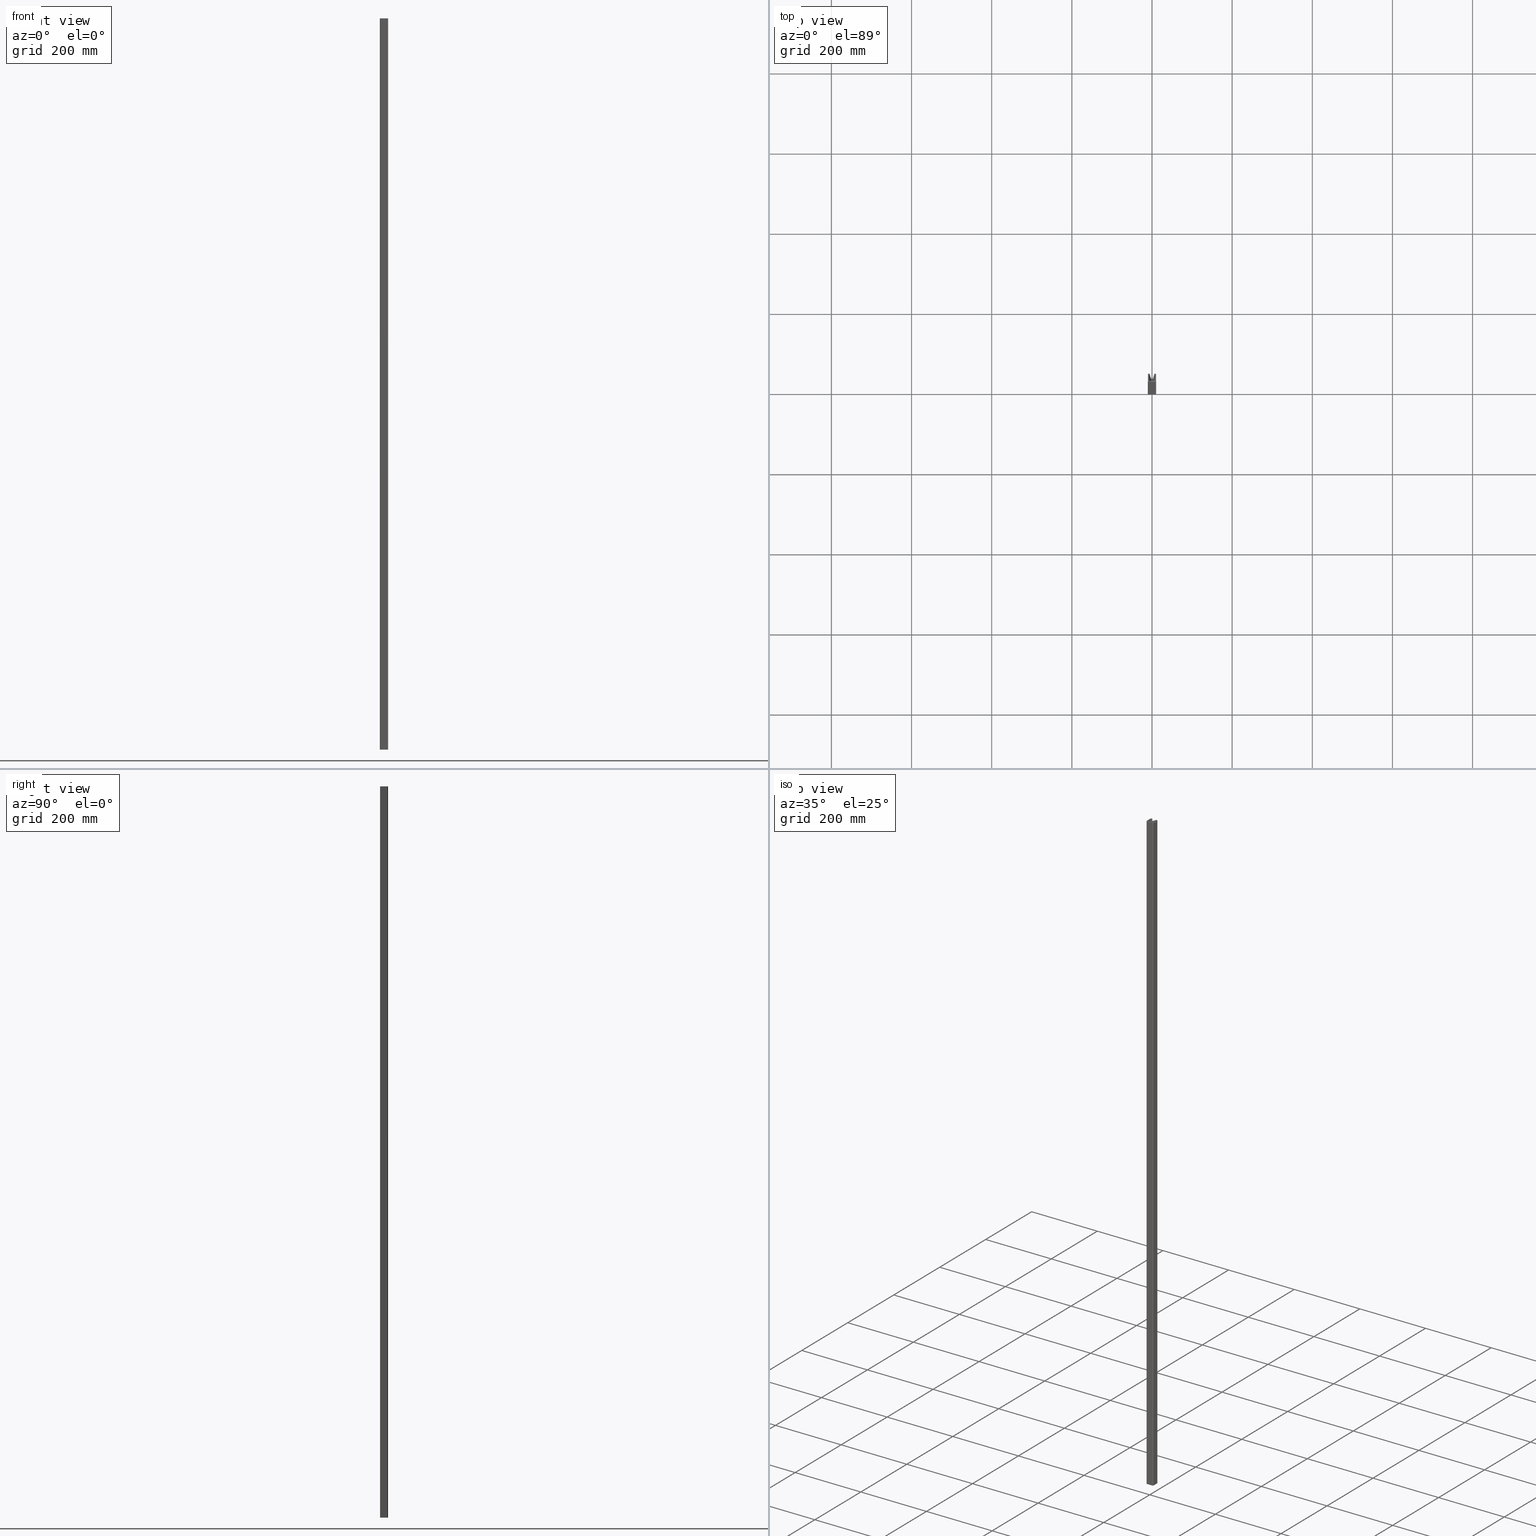
[diagram: canonical four-view strip — front | top / right | iso, engineering-drawing reading convention]
A machine part, canonical four-view strip (front | top / right | iso — engineering-drawing reading convention). The complete STEP part file that produces these views, byte-faithful:
ISO-10303-21;
HEADER;
FILE_DESCRIPTION (( 'STEP AP203' ),
    '1' );
FILE_NAME ('76FPTR18BS.STEP',
    '2024-07-12T15:49:43',
    ( '' ),
    ( '' ),
    'SwSTEP 2.0',
    'SolidWorks 2023',
    '' );
FILE_SCHEMA (( 'CONFIG_CONTROL_DESIGN' ));
ENDSEC;

DATA;
#1 = EDGE_CURVE ( 'NONE', #278, #435, #26, .T. ) ;
#2 = ORIENTED_EDGE ( 'NONE', *, *, #781, .T. ) ;
#3 = LINE ( 'NONE', #597, #752 ) ;
#4 = CARTESIAN_POINT ( 'NONE',  ( 7.432696246642550797, 18.00000000000001066, 0.000000000000000000 ) ) ;
#5 = LINE ( 'NONE', #513, #283 ) ;
#6 = CALENDAR_DATE ( 2024, 12, 7 ) ;
#7 = ORIENTED_EDGE ( 'NONE', *, *, #226, .T. ) ;
#8 = EDGE_CURVE ( 'NONE', #541, #135, #731, .T. ) ;
#9 = CC_DESIGN_APPROVAL ( #868, ( #1073 ) ) ;
#10 =( LENGTH_UNIT ( ) NAMED_UNIT ( * ) SI_UNIT ( .MILLI., .METRE. ) );
#11 = DIRECTION ( 'NONE',  ( 0.000000000000000000, 0.000000000000000000, 1.000000000000000000 ) ) ;
#12 = SECURITY_CLASSIFICATION ( '', '', #636 ) ;
#13 = ORIENTED_EDGE ( 'NONE', *, *, #394, .T. ) ;
#14 = CC_DESIGN_PERSON_AND_ORGANIZATION_ASSIGNMENT ( #1071, #134, ( #790 ) ) ;
#15 = DIRECTION ( 'NONE',  ( 0.000000000000000000, 0.000000000000000000, 1.000000000000000000 ) ) ;
#16 = PERSON_AND_ORGANIZATION_ROLE ( 'design_owner' ) ;
#17 = VERTEX_POINT ( 'NONE', #274 ) ;
#18 = LINE ( 'NONE', #1121, #515 ) ;
#19 = VERTEX_POINT ( 'NONE', #615 ) ;
#20 = CARTESIAN_POINT ( 'NONE',  ( -9.099999999999999645, 2.000000000000000000, -1825.000000000000000 ) ) ;
#21 = ORIENTED_EDGE ( 'NONE', *, *, #698, .F. ) ;
#22 = FACE_BOUND ( 'NONE', #115, .T. ) ;
#23 = EDGE_CURVE ( 'NONE', #276, #19, #181, .T. ) ;
#24 = ORIENTED_EDGE ( 'NONE', *, *, #451, .T. ) ;
#25 = CARTESIAN_POINT ( 'NONE',  ( 2.533651695155501038, 8.100000000000001421, -1825.000000000000000 ) ) ;
#26 = CIRCLE ( 'NONE', #607, 0.8000000000000003775 ) ;
#27 = ORIENTED_EDGE ( 'NONE', *, *, #1087, .F. ) ;
#28 = CARTESIAN_POINT ( 'NONE',  ( -10.30000000000000071, 2.000000000000000000, -1825.000000000000000 ) ) ;
#29 = VECTOR ( 'NONE', #545, 1000.000000000000000 ) ;
#30 = VECTOR ( 'NONE', #844, 1000.000000000000000 ) ;
#31 = EDGE_CURVE ( 'NONE', #106, #907, #361, .T. ) ;
#32 = PLANE ( 'NONE',  #443 ) ;
#33 = ADVANCED_BREP_SHAPE_REPRESENTATION ( '76FPTR18BS', ( #774, #155 ), #734 ) ;
#34 = ORIENTED_EDGE ( 'NONE', *, *, #631, .T. ) ;
#35 = PLANE ( 'NONE',  #126 ) ;
#36 = ORIENTED_EDGE ( 'NONE', *, *, #680, .T. ) ;
#37 = FACE_OUTER_BOUND ( 'NONE', #624, .T. ) ;
#38 = CARTESIAN_POINT ( 'NONE',  ( 7.432696246642550797, 18.80000000000000782, -1825.000000000000000 ) ) ;
#39 = EDGE_CURVE ( 'NONE', #541, #427, #109, .T. ) ;
#40 = ORIENTED_EDGE ( 'NONE', *, *, #981, .T. ) ;
#41 = DIRECTION ( 'NONE',  ( 0.000000000000000000, 0.000000000000000000, 1.000000000000000000 ) ) ;
#42 = VERTEX_POINT ( 'NONE', #1001 ) ;
#43 = DIRECTION ( 'NONE',  ( 3.989808127441476759E-15, 1.000000000000000000, -0.000000000000000000 ) ) ;
#44 = CARTESIAN_POINT ( 'NONE',  ( -6.560845213036122558, 20.00000000000000711, -1825.000000000000000 ) ) ;
#45 = APPROVAL_DATE_TIME ( #994, #787 ) ;
#46 = ORIENTED_EDGE ( 'NONE', *, *, #1065, .F. ) ;
#47 = ADVANCED_FACE ( 'NONE', ( #568 ), #999, .F. ) ;
#48 = CARTESIAN_POINT ( 'NONE',  ( -5.799999999999999822, 19.44721359549996720, -1825.000000000000000 ) ) ;
#49 = VECTOR ( 'NONE', #666, 1000.000000000000000 ) ;
#50 = DIRECTION ( 'NONE',  ( -1.000000000000000000, 0.000000000000000000, 0.000000000000000000 ) ) ;
#51 = CIRCLE ( 'NONE', #340, 0.8000000000000008216 ) ;
#52 = CIRCLE ( 'NONE', #679, 0.8000000000000020428 ) ;
#53 = ORIENTED_EDGE ( 'NONE', *, *, #349, .T. ) ;
#54 = CARTESIAN_POINT ( 'NONE',  ( -8.300000000000000711, 1.199999999999999956, -1825.000000000000000 ) ) ;
#55 = CARTESIAN_POINT ( 'NONE',  ( 6.560845213036122558, 20.00000000000000711, -1825.000000000000000 ) ) ;
#56 = ORIENTED_EDGE ( 'NONE', *, *, #234, .T. ) ;
#57 = CARTESIAN_POINT ( 'NONE',  ( 8.300000000000000711, 2.000000000000000000, -1825.000000000000000 ) ) ;
#58 = DIRECTION ( 'NONE',  ( 0.000000000000000000, 0.000000000000000000, 1.000000000000000000 ) ) ;
#59 = EDGE_CURVE ( 'NONE', #286, #794, #1098, .T. ) ;
#60 = CARTESIAN_POINT ( 'NONE',  ( -8.300000000000000711, 1.199999999999999956, 0.000000000000000000 ) ) ;
#61 = ORIENTED_EDGE ( 'NONE', *, *, #618, .F. ) ;
#62 = CYLINDRICAL_SURFACE ( 'NONE', #411, 1.999999999999999112 ) ;
#63 = CARTESIAN_POINT ( 'NONE',  ( -9.099999999999999645, 18.00000000000000355, -1825.000000000000000 ) ) ;
#64 = VECTOR ( 'NONE', #873, 1000.000000000000000 ) ;
#65 = EDGE_CURVE ( 'NONE', #485, #75, #738, .T. ) ;
#66 = CIRCLE ( 'NONE', #712, 0.8000000000000008216 ) ;
#67 = LINE ( 'NONE', #401, #143 ) ;
#68 = VECTOR ( 'NONE', #448, 1000.000000000000000 ) ;
#69 = CC_DESIGN_APPROVAL ( #787, ( #790 ) ) ;
#70 = EDGE_LOOP ( 'NONE', ( #740, #627, #1085, #814 ) ) ;
#71 = CARTESIAN_POINT ( 'NONE',  ( -2.533651695155498373, 7.299999999999999822, -1825.000000000000000 ) ) ;
#72 = FACE_OUTER_BOUND ( 'NONE', #426, .T. ) ;
#73 = CARTESIAN_POINT ( 'NONE',  ( -7.432696246642550797, 18.80000000000000426, -1825.000000000000000 ) ) ;
#74 = CARTESIAN_POINT ( 'NONE',  ( -2.533651695155498373, 8.100000000000001421, -1825.000000000000000 ) ) ;
#75 = VERTEX_POINT ( 'NONE', #127 ) ;
#76 = ADVANCED_FACE ( 'NONE', ( #1003 ), #985, .T. ) ;
#77 = LINE ( 'NONE', #313, #142 ) ;
#78 = PLANE ( 'NONE',  #442 ) ;
#79 = CARTESIAN_POINT ( 'NONE',  ( 6.671851033606428061, 18.24721359549996791, 0.000000000000000000 ) ) ;
#80 = CARTESIAN_POINT ( 'NONE',  ( -8.300000000000000711, 1.199999999999999956, -1825.000000000000000 ) ) ;
#81 = EDGE_LOOP ( 'NONE', ( #523, #13, #53, #877, #144, #478, #1072, #272, #1124, #195, #216, #329, #652, #191 ) ) ;
#82 = EDGE_CURVE ( 'NONE', #198, #946, #122, .T. ) ;
#83 = DIRECTION ( 'NONE',  ( 2.168404344971009361E-16, 1.000000000000000000, 0.000000000000000000 ) ) ;
#84 = DIRECTION ( 'NONE',  ( 0.000000000000000000, 0.000000000000000000, 1.000000000000000000 ) ) ;
#85 = AXIS2_PLACEMENT_3D ( 'NONE', #219, #897, #1088 ) ;
#86 = ORIENTED_EDGE ( 'NONE', *, *, #861, .T. ) ;
#87 = CIRCLE ( 'NONE', #556, 0.8000000000000003775 ) ;
#88 = CARTESIAN_POINT ( 'NONE',  ( 2.533651695155501038, 8.100000000000001421, -1825.000000000000000 ) ) ;
#89 = EDGE_CURVE ( 'NONE', #369, #518, #498, .T. ) ;
#90 = DIRECTION ( 'NONE',  ( 1.000000000000000000, 0.000000000000000000, 0.000000000000000000 ) ) ;
#91 = ORIENTED_EDGE ( 'NONE', *, *, #39, .F. ) ;
#92 = ORIENTED_EDGE ( 'NONE', *, *, #479, .F. ) ;
#93 = CARTESIAN_POINT ( 'NONE',  ( -2.243034683953356367, 8.500000000000000000, 0.000000000000000000 ) ) ;
#94 = CARTESIAN_POINT ( 'NONE',  ( -5.799999999999999822, 19.44721359549996720, -1825.000000000000000 ) ) ;
#95 = EDGE_CURVE ( 'NONE', #119, #1089, #66, .T. ) ;
#96 = VERTEX_POINT ( 'NONE', #206 ) ;
#97 = ORIENTED_EDGE ( 'NONE', *, *, #218, .F. ) ;
#98 = FACE_OUTER_BOUND ( 'NONE', #357, .T. ) ;
#99 = CYLINDRICAL_SURFACE ( 'NONE', #753, 2.000000000000000000 ) ;
#100 = EDGE_CURVE ( 'NONE', #997, #366, #635, .T. ) ;
#101 = EDGE_LOOP ( 'NONE', ( #733, #599, #512, #312 ) ) ;
#102 = VECTOR ( 'NONE', #676, 1000.000000000000000 ) ;
#103 = VECTOR ( 'NONE', #906, 1000.000000000000000 ) ;
#104 = ORIENTED_EDGE ( 'NONE', *, *, #874, .T. ) ;
#105 = DIRECTION ( 'NONE',  ( -1.000000000000000000, 0.000000000000000000, 0.000000000000000000 ) ) ;
#106 = VERTEX_POINT ( 'NONE', #38 ) ;
#107 = DIRECTION ( 'NONE',  ( 1.000000000000000000, 0.000000000000000000, 0.000000000000000000 ) ) ;
#108 = ORIENTED_EDGE ( 'NONE', *, *, #825, .F. ) ;
#109 = LINE ( 'NONE', #707, #229 ) ;
#110 = ORIENTED_EDGE ( 'NONE', *, *, #639, .F. ) ;
#111 = DIRECTION ( 'NONE',  ( -1.000000000000000000, 0.000000000000000000, 0.000000000000000000 ) ) ;
#112 = ORIENTED_EDGE ( 'NONE', *, *, #838, .F. ) ;
#113 = CALENDAR_DATE ( 2024, 12, 7 ) ;
#114 = EDGE_CURVE ( 'NONE', #1089, #469, #724, .T. ) ;
#115 = EDGE_LOOP ( 'NONE', ( #1078, #449, #104, #682, #1000, #889, #527, #957, #1117, #717, #962, #40, #378, #554, #304, #374 ) ) ;
#116 = CARTESIAN_POINT ( 'NONE',  ( 8.300000000000000711, 18.80000000000000071, 0.000000000000000000 ) ) ;
#117 = CARTESIAN_POINT ( 'NONE',  ( -2.243034683953356367, 8.500000000000000000, -1825.000000000000000 ) ) ;
#118 = COORDINATED_UNIVERSAL_TIME_OFFSET ( 0, 0, .AHEAD. ) ;
#119 = VERTEX_POINT ( 'NONE', #382 ) ;
#120 = DIRECTION ( 'NONE',  ( 0.000000000000000000, 0.000000000000000000, 1.000000000000000000 ) ) ;
#121 = LINE ( 'NONE', #1016, #251 ) ;
#122 = CIRCLE ( 'NONE', #555, 0.8000000000000003775 ) ;
#123 = ORIENTED_EDGE ( 'NONE', *, *, #1039, .T. ) ;
#124 = DIRECTION ( 'NONE',  ( 2.168404344971008868E-16, 1.000000000000000000, -0.000000000000000000 ) ) ;
#125 = VECTOR ( 'NONE', #335, 1000.000000000000000 ) ;
#126 = AXIS2_PLACEMENT_3D ( 'NONE', #232, #322, #379 ) ;
#127 = CARTESIAN_POINT ( 'NONE',  ( 6.560845213036122558, 20.00000000000000711, -1825.000000000000000 ) ) ;
#128 = ORIENTED_EDGE ( 'NONE', *, *, #526, .F. ) ;
#129 = DIRECTION ( 'NONE',  ( -1.000000000000000000, 0.000000000000000000, 0.000000000000000000 ) ) ;
#130 = ORIENTED_EDGE ( 'NONE', *, *, #437, .F. ) ;
#131 = DIRECTION ( 'NONE',  ( -1.000000000000000000, 3.989808127441476759E-15, 0.000000000000000000 ) ) ;
#132 = LINE ( 'NONE', #570, #103 ) ;
#133 = EDGE_CURVE ( 'NONE', #42, #997, #288, .T. ) ;
#134 = PERSON_AND_ORGANIZATION_ROLE ( 'design_supplier' ) ;
#135 = VERTEX_POINT ( 'NONE', #565 ) ;
#136 = DIRECTION ( 'NONE',  ( 0.000000000000000000, 0.000000000000000000, 1.000000000000000000 ) ) ;
#137 = DIRECTION ( 'NONE',  ( -0.3090169943749514481, 0.9510565162951523099, 0.000000000000000000 ) ) ;
#138 = VERTEX_POINT ( 'NONE', #1077 ) ;
#139 = EDGE_CURVE ( 'NONE', #518, #210, #909, .T. ) ;
#140 = CARTESIAN_POINT ( 'NONE',  ( 2.533651695155501926, 7.300000000000000711, -1825.000000000000000 ) ) ;
#141 = PLANE ( 'NONE',  #532 ) ;
#142 = VECTOR ( 'NONE', #760, 1000.000000000000000 ) ;
#143 = VECTOR ( 'NONE', #414, 1000.000000000000000 ) ;
#144 = ORIENTED_EDGE ( 'NONE', *, *, #345, .T. ) ;
#145 = ADVANCED_FACE ( 'NONE', ( #561 ), #32, .T. ) ;
#146 = CARTESIAN_POINT ( 'NONE',  ( 5.799999999999999822, 19.44721359549996720, -1825.000000000000000 ) ) ;
#147 = DIRECTION ( 'NONE',  ( -0.3090169943749512815, -0.9510565162951523099, 0.000000000000000000 ) ) ;
#148 = CARTESIAN_POINT ( 'NONE',  ( 10.30000000000000071, 2.000000000000000000, -1825.000000000000000 ) ) ;
#149 = CARTESIAN_POINT ( 'NONE',  ( 8.300000000000000711, 1.200000000000000622, 0.000000000000000000 ) ) ;
#150 = ADVANCED_FACE ( 'NONE', ( #729, #310 ), #141, .F. ) ;
#151 = LINE ( 'NONE', #332, #591 ) ;
#152 = CARTESIAN_POINT ( 'NONE',  ( -6.671851033606428061, 18.24721359549996791, -1825.000000000000000 ) ) ;
#153 = CYLINDRICAL_SURFACE ( 'NONE', #622, 0.7999999999999986011 ) ;
#154 = CARTESIAN_POINT ( 'NONE',  ( -10.30000000000000071, 18.00000000000000355, 0.000000000000000000 ) ) ;
#155 = AXIS2_PLACEMENT_3D ( 'NONE', #372, #799, #959 ) ;
#156 = VECTOR ( 'NONE', #642, 1000.000000000000000 ) ;
#157 = LINE ( 'NONE', #297, #732 ) ;
#158 = VECTOR ( 'NONE', #1048, 1000.000000000000000 ) ;
#159 = ORIENTED_EDGE ( 'NONE', *, *, #1045, .F. ) ;
#160 = CARTESIAN_POINT ( 'NONE',  ( 6.671851033606428061, 18.24721359549996791, -1825.000000000000000 ) ) ;
#161 = CARTESIAN_POINT ( 'NONE',  ( 3.294496908191622886, 7.852786404500039730, -1825.000000000000000 ) ) ;
#162 = DIRECTION ( 'NONE',  ( 2.168404344971008868E-16, 1.000000000000000000, -0.000000000000000000 ) ) ;
#163 = DIRECTION ( 'NONE',  ( 0.000000000000000000, 0.000000000000000000, 1.000000000000000000 ) ) ;
#164 = EDGE_CURVE ( 'NONE', #1107, #286, #132, .T. ) ;
#165 = ORIENTED_EDGE ( 'NONE', *, *, #611, .F. ) ;
#166 = CARTESIAN_POINT ( 'NONE',  ( 7.432696246642550797, 18.00000000000001066, -1825.000000000000000 ) ) ;
#167 = DIRECTION ( 'NONE',  ( 1.000000000000000000, 0.000000000000000000, 0.000000000000000000 ) ) ;
#168 = CARTESIAN_POINT ( 'NONE',  ( -2.243034683953356367, 8.500000000000000000, -1825.000000000000000 ) ) ;
#169 = ORIENTED_EDGE ( 'NONE', *, *, #947, .F. ) ;
#170 = ORIENTED_EDGE ( 'NONE', *, *, #759, .T. ) ;
#171 = CYLINDRICAL_SURFACE ( 'NONE', #935, 0.8000000000000003775 ) ;
#172 = DIRECTION ( 'NONE',  ( 0.000000000000000000, 0.000000000000000000, 1.000000000000000000 ) ) ;
#173 = CARTESIAN_POINT ( 'NONE',  ( -8.300000000000000711, 18.80000000000000426, 0.000000000000000000 ) ) ;
#174 = ORIENTED_EDGE ( 'NONE', *, *, #1087, .T. ) ;
#175 = VECTOR ( 'NONE', #1091, 1000.000000000000000 ) ;
#176 = APPROVAL_PERSON_ORGANIZATION ( #828, #184, #744 ) ;
#177 = PERSON_AND_ORGANIZATION ( #996, #306 ) ;
#178 = ADVANCED_FACE ( 'NONE', ( #827 ), #629, .F. ) ;
#179 = PLANE ( 'NONE',  #480 ) ;
#180 = ORIENTED_EDGE ( 'NONE', *, *, #526, .T. ) ;
#181 = LINE ( 'NONE', #528, #644 ) ;
#182 = APPLICATION_PROTOCOL_DEFINITION ( 'international standard', 'config_control_design', 1994, #913 ) ;
#183 = CARTESIAN_POINT ( 'NONE',  ( -8.300000000000000711, 18.80000000000000426, -1825.000000000000000 ) ) ;
#184 = APPROVAL ( #400, 'UNSPECIFIED' ) ;
#185 = ORIENTED_EDGE ( 'NONE', *, *, #23, .T. ) ;
#186 = ORIENTED_EDGE ( 'NONE', *, *, #689, .T. ) ;
#187 = APPLICATION_PROTOCOL_DEFINITION ( 'international standard', 'config_control_design', 1994, #273 ) ;
#188 = ORIENTED_EDGE ( 'NONE', *, *, #1115, .F. ) ;
#189 = DIRECTION ( 'NONE',  ( -1.000000000000000000, -0.000000000000000000, -0.000000000000000000 ) ) ;
#190 = ADVANCED_FACE ( 'NONE', ( #376 ), #719, .T. ) ;
#191 = ORIENTED_EDGE ( 'NONE', *, *, #248, .T. ) ;
#192 = AXIS2_PLACEMENT_3D ( 'NONE', #254, #924, #504 ) ;
#193 = VERTEX_POINT ( 'NONE', #831 ) ;
#194 = CARTESIAN_POINT ( 'NONE',  ( -2.533651695155498373, 7.299999999999999822, -1825.000000000000000 ) ) ;
#195 = ORIENTED_EDGE ( 'NONE', *, *, #415, .T. ) ;
#196 = EDGE_CURVE ( 'NONE', #674, #193, #1035, .T. ) ;
#197 = DIRECTION ( 'NONE',  ( -0.000000000000000000, -0.000000000000000000, -1.000000000000000000 ) ) ;
#198 = VERTEX_POINT ( 'NONE', #940 ) ;
#199 = CARTESIAN_POINT ( 'NONE',  ( -10.30000000000000071, 18.00000000000000355, -1825.000000000000000 ) ) ;
#200 = DIRECTION ( 'NONE',  ( 0.000000000000000000, 0.000000000000000000, 1.000000000000000000 ) ) ;
#201 = ORIENTED_EDGE ( 'NONE', *, *, #429, .F. ) ;
#202 = FACE_OUTER_BOUND ( 'NONE', #746, .T. ) ;
#203 = EDGE_CURVE ( 'NONE', #936, #369, #742, .T. ) ;
#204 = ORIENTED_EDGE ( 'NONE', *, *, #1045, .T. ) ;
#205 = FACE_OUTER_BOUND ( 'NONE', #637, .T. ) ;
#206 = CARTESIAN_POINT ( 'NONE',  ( -6.671851033606428061, 18.24721359549996791, -1825.000000000000000 ) ) ;
#207 = ORIENTED_EDGE ( 'NONE', *, *, #8, .F. ) ;
#208 = CIRCLE ( 'NONE', #412, 2.000000000000000000 ) ;
#209 = CARTESIAN_POINT ( 'NONE',  ( -8.300000000000000711, 1.199999999999999956, -1825.000000000000000 ) ) ;
#210 = VERTEX_POINT ( 'NONE', #1097 ) ;
#211 = CARTESIAN_POINT ( 'NONE',  ( 9.099999999999997868, 2.000000000000000000, -1825.000000000000000 ) ) ;
#212 = AXIS2_PLACEMENT_3D ( 'NONE', #908, #1002, #136 ) ;
#213 = EDGE_CURVE ( 'NONE', #138, #256, #3, .T. ) ;
#214 = VECTOR ( 'NONE', #90, 1000.000000000000000 ) ;
#215 = DIRECTION ( 'NONE',  ( -0.000000000000000000, 0.000000000000000000, -1.000000000000000000 ) ) ;
#216 = ORIENTED_EDGE ( 'NONE', *, *, #825, .T. ) ;
#217 = CARTESIAN_POINT ( 'NONE',  ( -6.671851033606428061, 18.24721359549996791, 0.000000000000000000 ) ) ;
#218 = EDGE_CURVE ( 'NONE', #366, #571, #327, .T. ) ;
#219 = CARTESIAN_POINT ( 'NONE',  ( 6.560845213036122558, 19.20000000000000639, -1825.000000000000000 ) ) ;
#220 = PERSON_AND_ORGANIZATION ( #996, #306 ) ;
#221 = ADVANCED_FACE ( 'NONE', ( #320 ), #499, .T. ) ;
#222 = ORIENTED_EDGE ( 'NONE', *, *, #623, .T. ) ;
#223 = DIRECTION ( 'NONE',  ( 0.000000000000000000, 0.000000000000000000, 1.000000000000000000 ) ) ;
#224 = CARTESIAN_POINT ( 'NONE',  ( 6.560845213036122558, 19.20000000000000639, 0.000000000000000000 ) ) ;
#225 = DATE_TIME_ROLE ( 'classification_date' ) ;
#226 = EDGE_CURVE ( 'NONE', #686, #119, #151, .T. ) ;
#227 = EDGE_LOOP ( 'NONE', ( #174, #266, #92, #301 ) ) ;
#228 = CARTESIAN_POINT ( 'NONE',  ( -6.560845213036122558, 20.00000000000000711, 0.000000000000000000 ) ) ;
#229 = VECTOR ( 'NONE', #120, 1000.000000000000000 ) ;
#230 = CARTESIAN_POINT ( 'NONE',  ( 5.799999999999999822, 19.44721359549996720, -1825.000000000000000 ) ) ;
#231 = AXIS2_PLACEMENT_3D ( 'NONE', #728, #287, #111 ) ;
#232 = CARTESIAN_POINT ( 'NONE',  ( -8.300000000000000711, 1.199999999999999956, -1825.000000000000000 ) ) ;
#233 = ORIENTED_EDGE ( 'NONE', *, *, #23, .F. ) ;
#234 = EDGE_CURVE ( 'NONE', #407, #485, #914, .T. ) ;
#235 = CARTESIAN_POINT ( 'NONE',  ( -10.30000000000000071, 18.00000000000000355, 0.000000000000000000 ) ) ;
#236 = FACE_OUTER_BOUND ( 'NONE', #101, .T. ) ;
#237 = CARTESIAN_POINT ( 'NONE',  ( -5.799999999999999822, 19.44721359549996720, -1825.000000000000000 ) ) ;
#238 = DIRECTION ( 'NONE',  ( 0.000000000000000000, 0.000000000000000000, 1.000000000000000000 ) ) ;
#239 = ORIENTED_EDGE ( 'NONE', *, *, #1122, .F. ) ;
#240 = CARTESIAN_POINT ( 'NONE',  ( -8.300000000000000711, 0.000000000000000000, -1825.000000000000000 ) ) ;
#241 = DIRECTION ( 'NONE',  ( 1.000000000000000000, 0.000000000000000000, 0.000000000000000000 ) ) ;
#242 = CARTESIAN_POINT ( 'NONE',  ( -8.300000000000000711, 18.00000000000000355, -1825.000000000000000 ) ) ;
#243 = CARTESIAN_POINT ( 'NONE',  ( -8.300000000000000711, 2.000000000000000000, -1825.000000000000000 ) ) ;
#244 = VERTEX_POINT ( 'NONE', #1021 ) ;
#245 = DIRECTION ( 'NONE',  ( 0.000000000000000000, 0.000000000000000000, 1.000000000000000000 ) ) ;
#246 = LINE ( 'NONE', #161, #102 ) ;
#247 = CARTESIAN_POINT ( 'NONE',  ( 9.099999999999999645, 18.00000000000000355, 0.000000000000000000 ) ) ;
#248 = EDGE_CURVE ( 'NONE', #630, #427, #1105, .T. ) ;
#249 = CIRCLE ( 'NONE', #845, 0.7999999999999994893 ) ;
#250 = AXIS2_PLACEMENT_3D ( 'NONE', #1114, #920, #761 ) ;
#251 = VECTOR ( 'NONE', #928, 1000.000000000000000 ) ;
#252 = LOCAL_TIME ( 16, 49, 43.00000000000000000, #262 ) ;
#253 = VERTEX_POINT ( 'NONE', #63 ) ;
#254 = CARTESIAN_POINT ( 'NONE',  ( 8.300000000000000711, 18.00000000000000355, 0.000000000000000000 ) ) ;
#255 = CARTESIAN_POINT ( 'NONE',  ( 6.560845213036122558, 20.00000000000000711, 0.000000000000000000 ) ) ;
#256 = VERTEX_POINT ( 'NONE', #247 ) ;
#257 = FACE_OUTER_BOUND ( 'NONE', #783, .T. ) ;
#258 = DIRECTION ( 'NONE',  ( 0.000000000000000000, 0.000000000000000000, 1.000000000000000000 ) ) ;
#259 = ORIENTED_EDGE ( 'NONE', *, *, #82, .T. ) ;
#260 = ADVANCED_FACE ( 'NONE', ( #678 ), #846, .F. ) ;
#261 = EDGE_LOOP ( 'NONE', ( #170, #61, #188, #204 ) ) ;
#262 = COORDINATED_UNIVERSAL_TIME_OFFSET ( 0, 0, .AHEAD. ) ;
#263 = DIRECTION ( 'NONE',  ( -1.711683061343541134E-16, 1.000000000000000000, 0.000000000000000000 ) ) ;
#264 = CARTESIAN_POINT ( 'NONE',  ( -9.099999999999999645, 18.00000000000000355, 0.000000000000000000 ) ) ;
#265 = CIRCLE ( 'NONE', #898, 0.8000000000000003775 ) ;
#266 = ORIENTED_EDGE ( 'NONE', *, *, #623, .F. ) ;
#267 = CIRCLE ( 'NONE', #1100, 0.7999999999999994893 ) ;
#268 = ADVANCED_FACE ( 'NONE', ( #944 ), #424, .T. ) ;
#269 = CARTESIAN_POINT ( 'NONE',  ( -8.300000000000000711, 2.000000000000000000, -1825.000000000000000 ) ) ;
#270 = CARTESIAN_POINT ( 'NONE',  ( 5.799999999999999822, 19.44721359549996720, -1825.000000000000000 ) ) ;
#271 = CARTESIAN_POINT ( 'NONE',  ( -7.432696246642550797, 18.00000000000000711, -1825.000000000000000 ) ) ;
#272 = ORIENTED_EDGE ( 'NONE', *, *, #139, .T. ) ;
#273 = APPLICATION_CONTEXT ( 'configuration controlled 3d designs of mechanical parts and assemblies' ) ;
#274 = CARTESIAN_POINT ( 'NONE',  ( 8.300000000000000711, 1.200000000000000622, -1825.000000000000000 ) ) ;
#275 = DIRECTION ( 'NONE',  ( 1.000000000000000000, 0.000000000000000000, 0.000000000000000000 ) ) ;
#276 = VERTEX_POINT ( 'NONE', #73 ) ;
#277 = COORDINATED_UNIVERSAL_TIME_OFFSET ( 0, 0, .AHEAD. ) ;
#278 = VERTEX_POINT ( 'NONE', #1027 ) ;
#279 = CARTESIAN_POINT ( 'NONE',  ( -9.099999999999999645, 18.00000000000000355, -1825.000000000000000 ) ) ;
#280 = EDGE_CURVE ( 'NONE', #633, #1089, #575, .T. ) ;
#281 = ORIENTED_EDGE ( 'NONE', *, *, #689, .F. ) ;
#282 = VECTOR ( 'NONE', #477, 1000.000000000000114 ) ;
#283 = VECTOR ( 'NONE', #965, 1000.000000000000000 ) ;
#284 = APPROVAL_STATUS ( 'not_yet_approved' ) ;
#285 = VECTOR ( 'NONE', #328, 1000.000000000000000 ) ;
#286 = VERTEX_POINT ( 'NONE', #419 ) ;
#287 = DIRECTION ( 'NONE',  ( 0.000000000000000000, 0.000000000000000000, 1.000000000000000000 ) ) ;
#288 = LINE ( 'NONE', #117, #1028 ) ;
#289 = ORIENTED_EDGE ( 'NONE', *, *, #952, .F. ) ;
#290 = EDGE_CURVE ( 'NONE', #75, #369, #654, .T. ) ;
#291 = CARTESIAN_POINT ( 'NONE',  ( -8.300000000000000711, 2.000000000000000000, -1825.000000000000000 ) ) ;
#292 = ORIENTED_EDGE ( 'NONE', *, *, #296, .T. ) ;
#293 = DIRECTION ( 'NONE',  ( 0.000000000000000000, 0.000000000000000000, 1.000000000000000000 ) ) ;
#294 = DIRECTION ( 'NONE',  ( 0.000000000000000000, 0.000000000000000000, 1.000000000000000000 ) ) ;
#295 = ORIENTED_EDGE ( 'NONE', *, *, #749, .T. ) ;
#296 = EDGE_CURVE ( 'NONE', #366, #703, #858, .T. ) ;
#297 = CARTESIAN_POINT ( 'NONE',  ( -2.533651695155498373, 7.299999999999999822, -1825.000000000000000 ) ) ;
#298 = ORIENTED_EDGE ( 'NONE', *, *, #764, .F. ) ;
#299 = CARTESIAN_POINT ( 'NONE',  ( 6.560845213036122558, 20.00000000000000711, -1825.000000000000000 ) ) ;
#300 = CARTESIAN_POINT ( 'NONE',  ( 5.799999999999999822, 19.44721359549996720, 0.000000000000000000 ) ) ;
#301 = ORIENTED_EDGE ( 'NONE', *, *, #31, .T. ) ;
#302 = VECTOR ( 'NONE', #943, 1000.000000000000227 ) ;
#303 = VECTOR ( 'NONE', #492, 1000.000000000000227 ) ;
#304 = ORIENTED_EDGE ( 'NONE', *, *, #830, .T. ) ;
#305 = DIRECTION ( 'NONE',  ( -0.000000000000000000, 0.000000000000000000, -1.000000000000000000 ) ) ;
#306 = ORGANIZATION ( 'UNSPECIFIED', 'UNSPECIFIED', '' ) ;
#307 = DIRECTION ( 'NONE',  ( -1.000000000000000000, -0.000000000000000000, -0.000000000000000000 ) ) ;
#308 = ORIENTED_EDGE ( 'NONE', *, *, #248, .F. ) ;
#309 = CARTESIAN_POINT ( 'NONE',  ( 8.300000000000000711, 18.80000000000000071, -1825.000000000000000 ) ) ;
#310 = FACE_OUTER_BOUND ( 'NONE', #81, .T. ) ;
#311 = CALENDAR_DATE ( 2024, 12, 7 ) ;
#312 = ORIENTED_EDGE ( 'NONE', *, *, #952, .T. ) ;
#313 = CARTESIAN_POINT ( 'NONE',  ( 10.30000000000000071, 18.00000000000000355, -1825.000000000000000 ) ) ;
#314 = CARTESIAN_POINT ( 'NONE',  ( 8.300000000000000711, 18.00000000000000355, -1825.000000000000000 ) ) ;
#315 = ADVANCED_FACE ( 'NONE', ( #580 ), #403, .T. ) ;
#316 = CARTESIAN_POINT ( 'NONE',  ( 8.300000000000000711, 0.000000000000000000, -1825.000000000000000 ) ) ;
#317 = ORIENTED_EDGE ( 'NONE', *, *, #405, .F. ) ;
#318 = CARTESIAN_POINT ( 'NONE',  ( -6.560845213036122558, 20.00000000000000711, -1825.000000000000000 ) ) ;
#319 = AXIS2_PLACEMENT_3D ( 'NONE', #1110, #84, #167 ) ;
#320 = FACE_OUTER_BOUND ( 'NONE', #367, .T. ) ;
#321 = VECTOR ( 'NONE', #621, 1000.000000000000000 ) ;
#322 = DIRECTION ( 'NONE',  ( 0.000000000000000000, -1.000000000000000000, 0.000000000000000000 ) ) ;
#323 = ORIENTED_EDGE ( 'NONE', *, *, #133, .T. ) ;
#324 = ADVANCED_FACE ( 'NONE', ( #748 ), #926, .F. ) ;
#325 = DIRECTION ( 'NONE',  ( 0.000000000000000000, 0.000000000000000000, 1.000000000000000000 ) ) ;
#326 = DIRECTION ( 'NONE',  ( -0.9510565162951523099, 0.3090169943749512815, 0.000000000000000000 ) ) ;
#327 = LINE ( 'NONE', #237, #49 ) ;
#328 = DIRECTION ( 'NONE',  ( 0.000000000000000000, 0.000000000000000000, 1.000000000000000000 ) ) ;
#329 = ORIENTED_EDGE ( 'NONE', *, *, #698, .T. ) ;
#330 = EDGE_CURVE ( 'NONE', #96, #276, #265, .T. ) ;
#331 = CARTESIAN_POINT ( 'NONE',  ( -2.533651695155498373, 7.299999999999999822, -1825.000000000000000 ) ) ;
#332 = CARTESIAN_POINT ( 'NONE',  ( -2.533651695155498373, 7.299999999999999822, 0.000000000000000000 ) ) ;
#333 = LINE ( 'NONE', #869, #537 ) ;
#334 = ORIENTED_EDGE ( 'NONE', *, *, #966, .T. ) ;
#335 = DIRECTION ( 'NONE',  ( -1.000000000000000000, -3.989808127441476759E-15, 0.000000000000000000 ) ) ;
#336 = LINE ( 'NONE', #1033, #692 ) ;
#337 = CARTESIAN_POINT ( 'NONE',  ( 6.560845213036122558, 20.00000000000000711, -1825.000000000000000 ) ) ;
#338 = AXIS2_PLACEMENT_3D ( 'NONE', #230, #1015, #147 ) ;
#339 = ADVANCED_FACE ( 'NONE', ( #949 ), #179, .F. ) ;
#340 = AXIS2_PLACEMENT_3D ( 'NONE', #832, #470, #502 ) ;
#341 = CIRCLE ( 'NONE', #974, 0.8000000000000008216 ) ;
#342 = ORIENTED_EDGE ( 'NONE', *, *, #813, .F. ) ;
#343 = CARTESIAN_POINT ( 'NONE',  ( 8.300000000000000711, 18.80000000000000071, -1825.000000000000000 ) ) ;
#344 = CARTESIAN_POINT ( 'NONE',  ( 2.243034683953359032, 8.500000000000000000, -1825.000000000000000 ) ) ;
#345 = EDGE_CURVE ( 'NONE', #475, #936, #1008, .T. ) ;
#346 = ORIENTED_EDGE ( 'NONE', *, *, #296, .F. ) ;
#347 = CARTESIAN_POINT ( 'NONE',  ( 6.671851033606428061, 18.24721359549996791, -1825.000000000000000 ) ) ;
#348 = CARTESIAN_POINT ( 'NONE',  ( -8.300000000000000711, 20.00000000000000000, -1825.000000000000000 ) ) ;
#349 = EDGE_CURVE ( 'NONE', #244, #1012, #514, .T. ) ;
#350 = ORIENTED_EDGE ( 'NONE', *, *, #234, .F. ) ;
#351 = CARTESIAN_POINT ( 'NONE',  ( -8.300000000000000711, 18.80000000000000426, -1825.000000000000000 ) ) ;
#352 = LINE ( 'NONE', #183, #393 ) ;
#353 = AXIS2_PLACEMENT_3D ( 'NONE', #893, #587, #1074 ) ;
#354 = VECTOR ( 'NONE', #538, 1000.000000000000000 ) ;
#355 = VERTEX_POINT ( 'NONE', #430 ) ;
#356 = AXIS2_PLACEMENT_3D ( 'NONE', #1076, #641, #829 ) ;
#357 = EDGE_LOOP ( 'NONE', ( #942, #857, #384, #34 ) ) ;
#358 = CARTESIAN_POINT ( 'NONE',  ( -3.294496908191621110, 7.852786404500039730, 0.000000000000000000 ) ) ;
#359 = LINE ( 'NONE', #344, #677 ) ;
#360 = ORIENTED_EDGE ( 'NONE', *, *, #618, .T. ) ;
#361 = LINE ( 'NONE', #968, #354 ) ;
#362 = CALENDAR_DATE ( 2024, 12, 7 ) ;
#363 = EDGE_CURVE ( 'NONE', #42, #210, #359, .T. ) ;
#364 = ORIENTED_EDGE ( 'NONE', *, *, #533, .F. ) ;
#365 = DIRECTION ( 'NONE',  ( 1.000000000000000000, 0.000000000000000000, 0.000000000000000000 ) ) ;
#366 = VERTEX_POINT ( 'NONE', #94 ) ;
#367 = EDGE_LOOP ( 'NONE', ( #130, #967, #582, #769 ) ) ;
#368 = DIRECTION ( 'NONE',  ( -1.000000000000000000, 0.000000000000000000, 0.000000000000000000 ) ) ;
#369 = VERTEX_POINT ( 'NONE', #1127 ) ;
#370 = AXIS2_PLACEMENT_3D ( 'NONE', #586, #932, #275 ) ;
#371 = VECTOR ( 'NONE', #1038, 1000.000000000000000 ) ;
#372 = CARTESIAN_POINT ( 'NONE',  ( 0.000000000000000000, 0.000000000000000000, 0.000000000000000000 ) ) ;
#373 = AXIS2_PLACEMENT_3D ( 'NONE', #772, #605, #871 ) ;
#374 = ORIENTED_EDGE ( 'NONE', *, *, #566, .T. ) ;
#375 = CYLINDRICAL_SURFACE ( 'NONE', #481, 0.8000000000000003775 ) ;
#376 = FACE_OUTER_BOUND ( 'NONE', #720, .T. ) ;
#377 = EDGE_CURVE ( 'NONE', #1050, #1075, #775, .T. ) ;
#378 = ORIENTED_EDGE ( 'NONE', *, *, #1115, .T. ) ;
#379 = DIRECTION ( 'NONE',  ( 0.000000000000000000, -0.000000000000000000, -1.000000000000000000 ) ) ;
#380 = EDGE_LOOP ( 'NONE', ( #295, #289, #495, #763 ) ) ;
#381 = PLANE ( 'NONE',  #356 ) ;
#382 = CARTESIAN_POINT ( 'NONE',  ( -2.533651695155498373, 7.299999999999999822, 0.000000000000000000 ) ) ;
#383 = CC_DESIGN_PERSON_AND_ORGANIZATION_ASSIGNMENT ( #220, #900, ( #12 ) ) ;
#384 = ORIENTED_EDGE ( 'NONE', *, *, #830, .F. ) ;
#385 = ORIENTED_EDGE ( 'NONE', *, *, #1057, .T. ) ;
#386 = PLANE ( 'NONE',  #695 ) ;
#387 = DIRECTION ( 'NONE',  ( -1.000000000000000000, 3.989808127441476759E-15, -0.000000000000000000 ) ) ;
#388 = ORIENTED_EDGE ( 'NONE', *, *, #896, .T. ) ;
#389 = AXIS2_PLACEMENT_3D ( 'NONE', #224, #891, #546 ) ;
#390 = AXIS2_PLACEMENT_3D ( 'NONE', #242, #672, #851 ) ;
#391 = EDGE_CURVE ( 'NONE', #852, #355, #807, .T. ) ;
#392 = FACE_OUTER_BOUND ( 'NONE', #1054, .T. ) ;
#393 = VECTOR ( 'NONE', #189, 1000.000000000000000 ) ;
#394 = EDGE_CURVE ( 'NONE', #986, #244, #18, .T. ) ;
#395 = DIRECTION ( 'NONE',  ( 0.9510565162951523099, 0.3090169943749514481, -0.000000000000000000 ) ) ;
#396 = PERSON_AND_ORGANIZATION_ROLE ( 'creator' ) ;
#397 = DIRECTION ( 'NONE',  ( 0.000000000000000000, 0.000000000000000000, 1.000000000000000000 ) ) ;
#398 = EDGE_CURVE ( 'NONE', #703, #1050, #867, .T. ) ;
#399 = CARTESIAN_POINT ( 'NONE',  ( -6.671851033606428061, 18.24721359549996791, -1825.000000000000000 ) ) ;
#400 = APPROVAL_STATUS ( 'not_yet_approved' ) ;
#401 = CARTESIAN_POINT ( 'NONE',  ( 10.30000000000000071, 18.00000000000000355, -1825.000000000000000 ) ) ;
#402 = CARTESIAN_POINT ( 'NONE',  ( 6.671851033606428061, 18.24721359549996791, 0.000000000000000000 ) ) ;
#403 = PLANE ( 'NONE',  #338 ) ;
#404 = PERSON_AND_ORGANIZATION ( #996, #306 ) ;
#405 = EDGE_CURVE ( 'NONE', #253, #1107, #436, .T. ) ;
#406 = DIRECTION ( 'NONE',  ( 0.000000000000000000, 0.000000000000000000, 1.000000000000000000 ) ) ;
#407 = VERTEX_POINT ( 'NONE', #786 ) ;
#408 = LINE ( 'NONE', #54, #500 ) ;
#409 = VECTOR ( 'NONE', #58, 1000.000000000000000 ) ;
#410 = DIRECTION ( 'NONE',  ( 1.000000000000000000, 0.000000000000000000, 0.000000000000000000 ) ) ;
#411 = AXIS2_PLACEMENT_3D ( 'NONE', #1103, #325, #665 ) ;
#412 = AXIS2_PLACEMENT_3D ( 'NONE', #434, #762, #945 ) ;
#413 = SHAPE_DEFINITION_REPRESENTATION ( #916, #33 ) ;
#414 = DIRECTION ( 'NONE',  ( -0.000000000000000000, 1.000000000000000000, -0.000000000000000000 ) ) ;
#415 = EDGE_CURVE ( 'NONE', #1095, #571, #5, .T. ) ;
#416 = ORIENTED_EDGE ( 'NONE', *, *, #433, .T. ) ;
#417 = CARTESIAN_POINT ( 'NONE',  ( -3.294496908191621110, 7.852786404500039730, -1825.000000000000000 ) ) ;
#418 = LINE ( 'NONE', #854, #863 ) ;
#419 = CARTESIAN_POINT ( 'NONE',  ( -9.099999999999999645, 2.000000000000000000, 0.000000000000000000 ) ) ;
#420 = ORIENTED_EDGE ( 'NONE', *, *, #226, .F. ) ;
#421 = CC_DESIGN_PERSON_AND_ORGANIZATION_ASSIGNMENT ( #963, #16, ( #1090 ) ) ;
#422 = DIRECTION ( 'NONE',  ( 1.000000000000000000, 0.000000000000000000, 0.000000000000000000 ) ) ;
#423 = CARTESIAN_POINT ( 'NONE',  ( -8.300000000000000711, 20.00000000000000000, -1825.000000000000000 ) ) ;
#424 = PLANE ( 'NONE',  #250 ) ;
#425 = UNCERTAINTY_MEASURE_WITH_UNIT (LENGTH_MEASURE( 1.000000000000000082E-05 ), #10, 'distance_accuracy_value', 'NONE');
#426 = EDGE_LOOP ( 'NONE', ( #929, #758, #298, #619 ) ) ;
#427 = VERTEX_POINT ( 'NONE', #960 ) ;
#428 = DIRECTION ( 'NONE',  ( 1.000000000000000000, -2.168404344971009361E-16, 0.000000000000000000 ) ) ;
#429 = EDGE_CURVE ( 'NONE', #276, #577, #352, .T. ) ;
#430 = CARTESIAN_POINT ( 'NONE',  ( 10.30000000000000071, 2.000000000000000000, -1825.000000000000000 ) ) ;
#431 = ORIENTED_EDGE ( 'NONE', *, *, #363, .F. ) ;
#432 = DIRECTION ( 'NONE',  ( 0.000000000000000000, 0.000000000000000000, 1.000000000000000000 ) ) ;
#433 = EDGE_CURVE ( 'NONE', #852, #244, #872, .T. ) ;
#434 = CARTESIAN_POINT ( 'NONE',  ( -8.300000000000000711, 18.00000000000000355, -1825.000000000000000 ) ) ;
#435 = VERTEX_POINT ( 'NONE', #885 ) ;
#436 = LINE ( 'NONE', #780, #68 ) ;
#437 = EDGE_CURVE ( 'NONE', #1012, #475, #693, .T. ) ;
#438 = ORIENTED_EDGE ( 'NONE', *, *, #800, .F. ) ;
#439 = ORIENTED_EDGE ( 'NONE', *, *, #349, .F. ) ;
#440 = LINE ( 'NONE', #270, #594 ) ;
#441 = CARTESIAN_POINT ( 'NONE',  ( 8.300000000000000711, 18.00000000000000355, -1825.000000000000000 ) ) ;
#442 = AXIS2_PLACEMENT_3D ( 'NONE', #683, #428, #83 ) ;
#443 = AXIS2_PLACEMENT_3D ( 'NONE', #44, #821, #1064 ) ;
#444 = ORIENTED_EDGE ( 'NONE', *, *, #391, .T. ) ;
#445 = ADVANCED_FACE ( 'NONE', ( #612 ), #99, .T. ) ;
#446 = CARTESIAN_POINT ( 'NONE',  ( -8.300000000000000711, 20.00000000000000000, 0.000000000000000000 ) ) ;
#447 = ORIENTED_EDGE ( 'NONE', *, *, #671, .F. ) ;
#448 = DIRECTION ( 'NONE',  ( 0.000000000000000000, -1.000000000000000000, 0.000000000000000000 ) ) ;
#449 = ORIENTED_EDGE ( 'NONE', *, *, #429, .T. ) ;
#450 = APPROVAL_ROLE ( '' ) ;
#451 = EDGE_CURVE ( 'NONE', #253, #946, #1056, .T. ) ;
#452 = ORIENTED_EDGE ( 'NONE', *, *, #377, .F. ) ;
#453 = CARTESIAN_POINT ( 'NONE',  ( 7.432696246642550797, 18.00000000000001066, -1825.000000000000000 ) ) ;
#454 = EDGE_LOOP ( 'NONE', ( #259, #1079, #910, #595 ) ) ;
#455 = DATE_AND_TIME ( #113, #643 ) ;
#456 = EDGE_LOOP ( 'NONE', ( #975, #727, #534, #123 ) ) ;
#457 = CARTESIAN_POINT ( 'NONE',  ( 5.799999999999999822, 19.44721359549996720, 0.000000000000000000 ) ) ;
#458 = ADVANCED_FACE ( 'NONE', ( #972 ), #862, .T. ) ;
#459 = DIRECTION ( 'NONE',  ( 0.000000000000000000, -0.000000000000000000, 1.000000000000000000 ) ) ;
#460 = VERTEX_POINT ( 'NONE', #817 ) ;
#461 = AXIS2_PLACEMENT_3D ( 'NONE', #984, #305, #368 ) ;
#462 = LINE ( 'NONE', #1094, #1047 ) ;
#463 = LOCAL_TIME ( 16, 49, 43.00000000000000000, #118 ) ;
#464 = ORIENTED_EDGE ( 'NONE', *, *, #737, .F. ) ;
#465 = CARTESIAN_POINT ( 'NONE',  ( -6.671851033606428061, 18.24721359549996791, -1825.000000000000000 ) ) ;
#466 = CC_DESIGN_DATE_AND_TIME_ASSIGNMENT ( #455, #519, ( #1073 ) ) ;
#467 = DIRECTION ( 'NONE',  ( -0.000000000000000000, -0.000000000000000000, -1.000000000000000000 ) ) ;
#468 = DATE_AND_TIME ( #311, #902 ) ;
#469 = VERTEX_POINT ( 'NONE', #217 ) ;
#470 = DIRECTION ( 'NONE',  ( -0.000000000000000000, -0.000000000000000000, -1.000000000000000000 ) ) ;
#471 = ORIENTED_EDGE ( 'NONE', *, *, #896, .F. ) ;
#472 = CARTESIAN_POINT ( 'NONE',  ( -7.432696246642550797, 18.00000000000000711, -1825.000000000000000 ) ) ;
#473 = CARTESIAN_POINT ( 'NONE',  ( -6.671851033606428061, 18.24721359549996791, 0.000000000000000000 ) ) ;
#474 = EDGE_CURVE ( 'NONE', #427, #986, #793, .T. ) ;
#475 = VERTEX_POINT ( 'NONE', #736 ) ;
#476 = CARTESIAN_POINT ( 'NONE',  ( 6.560845213036122558, 19.20000000000000639, -1825.000000000000000 ) ) ;
#477 = DIRECTION ( 'NONE',  ( -0.3090169943749514481, 0.9510565162951523099, -0.000000000000000000 ) ) ;
#478 = ORIENTED_EDGE ( 'NONE', *, *, #203, .T. ) ;
#479 = EDGE_CURVE ( 'NONE', #106, #980, #267, .T. ) ;
#480 = AXIS2_PLACEMENT_3D ( 'NONE', #194, #263, #606 ) ;
#481 = AXIS2_PLACEMENT_3D ( 'NONE', #472, #718, #1069 ) ;
#482 = DIRECTION ( 'NONE',  ( 0.000000000000000000, 0.000000000000000000, 1.000000000000000000 ) ) ;
#483 = AXIS2_PLACEMENT_3D ( 'NONE', #243, #1067, #667 ) ;
#484 = DIRECTION ( 'NONE',  ( 0.000000000000000000, 1.000000000000000000, 0.000000000000000000 ) ) ;
#485 = VERTEX_POINT ( 'NONE', #1062 ) ;
#486 = DIRECTION ( 'NONE',  ( 0.000000000000000000, 0.000000000000000000, 1.000000000000000000 ) ) ;
#487 = DIRECTION ( 'NONE',  ( -0.000000000000000000, 0.000000000000000000, -1.000000000000000000 ) ) ;
#488 = DIRECTION ( 'NONE',  ( 0.000000000000000000, 0.000000000000000000, 1.000000000000000000 ) ) ;
#489 = ORIENTED_EDGE ( 'NONE', *, *, #133, .F. ) ;
#490 = CARTESIAN_POINT ( 'NONE',  ( 3.294496908191622886, 7.852786404500039730, -1825.000000000000000 ) ) ;
#491 = CARTESIAN_POINT ( 'NONE',  ( 10.30000000000000071, 2.000000000000000000, 0.000000000000000000 ) ) ;
#492 = DIRECTION ( 'NONE',  ( -0.3090169943749512260, -0.9510565162951523099, 0.000000000000000000 ) ) ;
#493 = ADVANCED_FACE ( 'NONE', ( #628 ), #386, .T. ) ;
#494 = DIRECTION ( 'NONE',  ( 0.000000000000000000, 0.000000000000000000, 1.000000000000000000 ) ) ;
#495 = ORIENTED_EDGE ( 'NONE', *, *, #726, .F. ) ;
#496 = CARTESIAN_POINT ( 'NONE',  ( 8.300000000000000711, 2.000000000000000000, -1825.000000000000000 ) ) ;
#497 = PLANE ( 'NONE',  #589 ) ;
#498 = CIRCLE ( 'NONE', #389, 0.8000000000000020428 ) ;
#499 = PLANE ( 'NONE',  #1082 ) ;
#500 = VECTOR ( 'NONE', #765, 1000.000000000000000 ) ;
#501 = CC_DESIGN_APPROVAL ( #184, ( #12 ) ) ;
#502 = DIRECTION ( 'NONE',  ( 1.000000000000000000, 0.000000000000000000, 0.000000000000000000 ) ) ;
#503 = VERTEX_POINT ( 'NONE', #211 ) ;
#504 = DIRECTION ( 'NONE',  ( 1.000000000000000000, 0.000000000000000000, 0.000000000000000000 ) ) ;
#505 = LINE ( 'NONE', #1113, #730 ) ;
#506 = DIRECTION ( 'NONE',  ( 0.000000000000000000, -1.000000000000000000, 0.000000000000000000 ) ) ;
#507 = PLANE ( 'NONE',  #1084 ) ;
#508 = ORIENTED_EDGE ( 'NONE', *, *, #611, .T. ) ;
#509 = CARTESIAN_POINT ( 'NONE',  ( -3.294496908191621110, 7.852786404500039730, -1825.000000000000000 ) ) ;
#510 = ORIENTED_EDGE ( 'NONE', *, *, #59, .F. ) ;
#511 = ADVANCED_FACE ( 'NONE', ( #1080 ), #802, .T. ) ;
#512 = ORIENTED_EDGE ( 'NONE', *, *, #521, .F. ) ;
#513 = CARTESIAN_POINT ( 'NONE',  ( -5.799999999999999822, 19.44721359549996720, 0.000000000000000000 ) ) ;
#514 = CIRCLE ( 'NONE', #953, 2.000000000000000000 ) ;
#515 = VECTOR ( 'NONE', #1053, 1000.000000000000000 ) ;
#516 = DIRECTION ( 'NONE',  ( -1.000000000000000000, -0.000000000000000000, -0.000000000000000000 ) ) ;
#517 = AXIS2_PLACEMENT_3D ( 'NONE', #166, #766, #241 ) ;
#518 = VERTEX_POINT ( 'NONE', #457 ) ;
#519 = DATE_TIME_ROLE ( 'creation_date' ) ;
#520 = DIRECTION ( 'NONE',  ( 0.000000000000000000, 0.000000000000000000, 1.000000000000000000 ) ) ;
#521 = EDGE_CURVE ( 'NONE', #503, #278, #560, .T. ) ;
#522 = ORIENTED_EDGE ( 'NONE', *, *, #196, .F. ) ;
#523 = ORIENTED_EDGE ( 'NONE', *, *, #474, .T. ) ;
#524 = LINE ( 'NONE', #351, #660 ) ;
#525 = DIRECTION ( 'NONE',  ( 0.000000000000000000, 0.000000000000000000, 1.000000000000000000 ) ) ;
#526 = EDGE_CURVE ( 'NONE', #460, #541, #978, .T. ) ;
#527 = ORIENTED_EDGE ( 'NONE', *, *, #726, .T. ) ;
#528 = CARTESIAN_POINT ( 'NONE',  ( -7.432696246642550797, 18.80000000000000426, -1825.000000000000000 ) ) ;
#529 = DIRECTION ( 'NONE',  ( 1.000000000000000000, 0.000000000000000000, 0.000000000000000000 ) ) ;
#530 = ORIENTED_EDGE ( 'NONE', *, *, #1101, .F. ) ;
#531 = DIRECTION ( 'NONE',  ( 1.000000000000000000, 0.000000000000000000, 0.000000000000000000 ) ) ;
#532 = AXIS2_PLACEMENT_3D ( 'NONE', #991, #215, #651 ) ;
#533 = EDGE_CURVE ( 'NONE', #75, #1040, #1030, .T. ) ;
#534 = ORIENTED_EDGE ( 'NONE', *, *, #1, .F. ) ;
#535 = VECTOR ( 'NONE', #486, 1000.000000000000000 ) ;
#536 = ADVANCED_FACE ( 'NONE', ( #22, #392 ), #805, .T. ) ;
#537 = VECTOR ( 'NONE', #163, 1000.000000000000000 ) ;
#538 = DIRECTION ( 'NONE',  ( 0.000000000000000000, 0.000000000000000000, 1.000000000000000000 ) ) ;
#539 = VERTEX_POINT ( 'NONE', #116 ) ;
#540 = CARTESIAN_POINT ( 'NONE',  ( 8.300000000000000711, 2.000000000000000000, 0.000000000000000000 ) ) ;
#541 = VERTEX_POINT ( 'NONE', #28 ) ;
#542 = ADVANCED_FACE ( 'NONE', ( #710 ), #1086, .F. ) ;
#543 = PERSON_AND_ORGANIZATION ( #996, #306 ) ;
#544 = EDGE_LOOP ( 'NONE', ( #186, #233, #1061, #388 ) ) ;
#545 = DIRECTION ( 'NONE',  ( 0.000000000000000000, -1.000000000000000000, 0.000000000000000000 ) ) ;
#546 = DIRECTION ( 'NONE',  ( -1.000000000000000000, 0.000000000000000000, 0.000000000000000000 ) ) ;
#547 = APPROVAL_ROLE ( '' ) ;
#548 = ORIENTED_EDGE ( 'NONE', *, *, #813, .T. ) ;
#549 = CYLINDRICAL_SURFACE ( 'NONE', #483, 2.000000000000000000 ) ;
#550 = ADVANCED_FACE ( 'NONE', ( #205 ), #890, .T. ) ;
#551 = ORIENTED_EDGE ( 'NONE', *, *, #966, .F. ) ;
#552 = DIRECTION ( 'NONE',  ( 8.000534849579332601E-15, 1.000000000000000000, -0.000000000000000000 ) ) ;
#553 = DIRECTION ( 'NONE',  ( -1.000000000000000000, 0.000000000000000000, 0.000000000000000000 ) ) ;
#554 = ORIENTED_EDGE ( 'NONE', *, *, #735, .T. ) ;
#555 = AXIS2_PLACEMENT_3D ( 'NONE', #979, #200, #553 ) ;
#556 = AXIS2_PLACEMENT_3D ( 'NONE', #291, #41, #129 ) ;
#557 = CARTESIAN_POINT ( 'NONE',  ( -6.560845213036122558, 19.20000000000000639, 0.000000000000000000 ) ) ;
#558 = VECTOR ( 'NONE', #576, 1000.000000000000000 ) ;
#559 = ORIENTED_EDGE ( 'NONE', *, *, #1026, .F. ) ;
#560 = LINE ( 'NONE', #998, #1031 ) ;
#561 = FACE_OUTER_BOUND ( 'NONE', #983, .T. ) ;
#562 = ADVANCED_FACE ( 'NONE', ( #646 ), #375, .F. ) ;
#563 = ORIENTED_EDGE ( 'NONE', *, *, #203, .F. ) ;
#564 = DIRECTION ( 'NONE',  ( 1.000000000000000000, 0.000000000000000000, 0.000000000000000000 ) ) ;
#565 = CARTESIAN_POINT ( 'NONE',  ( -8.300000000000000711, 0.000000000000000000, -1825.000000000000000 ) ) ;
#566 = EDGE_CURVE ( 'NONE', #633, #96, #895, .T. ) ;
#567 = ORIENTED_EDGE ( 'NONE', *, *, #394, .F. ) ;
#568 = FACE_OUTER_BOUND ( 'NONE', #892, .T. ) ;
#569 = DIRECTION ( 'NONE',  ( -0.3090169943749515036, 0.9510565162951523099, 0.000000000000000000 ) ) ;
#570 = CARTESIAN_POINT ( 'NONE',  ( -9.099999999999999645, 2.000000000000000000, -1825.000000000000000 ) ) ;
#571 = VERTEX_POINT ( 'NONE', #723 ) ;
#572 = AXIS2_PLACEMENT_3D ( 'NONE', #912, #484, #459 ) ;
#573 = AXIS2_PLACEMENT_3D ( 'NONE', #982, #494, #1099 ) ;
#574 = DIRECTION ( 'NONE',  ( 0.000000000000000000, 0.000000000000000000, 1.000000000000000000 ) ) ;
#575 = LINE ( 'NONE', #509, #822 ) ;
#576 = DIRECTION ( 'NONE',  ( 0.000000000000000000, 0.000000000000000000, 1.000000000000000000 ) ) ;
#577 = VERTEX_POINT ( 'NONE', #811 ) ;
#578 = ADVANCED_FACE ( 'NONE', ( #37 ), #381, .F. ) ;
#579 = DIRECTION ( 'NONE',  ( 1.000000000000000000, 0.000000000000000000, 0.000000000000000000 ) ) ;
#580 = FACE_OUTER_BOUND ( 'NONE', #841, .T. ) ;
#581 = LINE ( 'NONE', #745, #625 ) ;
#582 = ORIENTED_EDGE ( 'NONE', *, *, #800, .T. ) ;
#583 = DIRECTION ( 'NONE',  ( 0.000000000000000000, 0.000000000000000000, 1.000000000000000000 ) ) ;
#584 = FACE_OUTER_BOUND ( 'NONE', #227, .T. ) ;
#585 = CC_DESIGN_PERSON_AND_ORGANIZATION_ASSIGNMENT ( #404, #396, ( #790 ) ) ;
#586 = CARTESIAN_POINT ( 'NONE',  ( 8.300000000000000711, 18.00000000000000355, -1825.000000000000000 ) ) ;
#587 = DIRECTION ( 'NONE',  ( 0.000000000000000000, 0.000000000000000000, 1.000000000000000000 ) ) ;
#588 = ORIENTED_EDGE ( 'NONE', *, *, #631, .F. ) ;
#589 = AXIS2_PLACEMENT_3D ( 'NONE', #835, #326, #1020 ) ;
#590 = FACE_OUTER_BOUND ( 'NONE', #380, .T. ) ;
#591 = VECTOR ( 'NONE', #1092, 1000.000000000000000 ) ;
#592 = DIRECTION ( 'NONE',  ( 1.000000000000000000, 0.000000000000000000, 0.000000000000000000 ) ) ;
#593 = CIRCLE ( 'NONE', #645, 0.8000000000000003775 ) ;
#594 = VECTOR ( 'NONE', #626, 1000.000000000000000 ) ;
#595 = ORIENTED_EDGE ( 'NONE', *, *, #1101, .T. ) ;
#596 = DIRECTION ( 'NONE',  ( 0.000000000000000000, -1.000000000000000000, 0.000000000000000000 ) ) ;
#597 = CARTESIAN_POINT ( 'NONE',  ( 9.100000000000001421, 18.00000000000000355, 0.000000000000000000 ) ) ;
#598 = ADVANCED_FACE ( 'NONE', ( #590 ), #153, .F. ) ;
#599 = ORIENTED_EDGE ( 'NONE', *, *, #1039, .F. ) ;
#600 = LINE ( 'NONE', #343, #30 ) ;
#601 = DIRECTION ( 'NONE',  ( 1.000000000000000000, 0.000000000000000000, 0.000000000000000000 ) ) ;
#602 = ORIENTED_EDGE ( 'NONE', *, *, #1122, .T. ) ;
#603 = ADVANCED_FACE ( 'NONE', ( #843 ), #675, .T. ) ;
#604 = EDGE_LOOP ( 'NONE', ( #894, #614, #1066, #865 ) ) ;
#605 = DIRECTION ( 'NONE',  ( 0.000000000000000000, 0.000000000000000000, 1.000000000000000000 ) ) ;
#606 = DIRECTION ( 'NONE',  ( -1.000000000000000000, -1.711683061343541134E-16, 0.000000000000000000 ) ) ;
#607 = AXIS2_PLACEMENT_3D ( 'NONE', #690, #789, #1051 ) ;
#608 = VECTOR ( 'NONE', #700, 1000.000000000000000 ) ;
#609 = EDGE_LOOP ( 'NONE', ( #46, #452, #1041, #1055 ) ) ;
#610 = DIRECTION ( 'NONE',  ( 0.000000000000000000, 0.000000000000000000, 1.000000000000000000 ) ) ;
#611 = EDGE_CURVE ( 'NONE', #485, #936, #1109, .T. ) ;
#612 = FACE_OUTER_BOUND ( 'NONE', #1005, .T. ) ;
#613 = CARTESIAN_POINT ( 'NONE',  ( 8.300000000000000711, 20.00000000000000000, 0.000000000000000000 ) ) ;
#614 = ORIENTED_EDGE ( 'NONE', *, *, #781, .F. ) ;
#615 = CARTESIAN_POINT ( 'NONE',  ( -7.432696246642550797, 18.80000000000000426, 0.000000000000000000 ) ) ;
#616 = MECHANICAL_CONTEXT ( 'NONE', #913, 'mechanical' ) ;
#617 = DIRECTION ( 'NONE',  ( 1.000000000000000000, 0.000000000000000000, 0.000000000000000000 ) ) ;
#618 = EDGE_CURVE ( 'NONE', #688, #686, #754, .T. ) ;
#619 = ORIENTED_EDGE ( 'NONE', *, *, #164, .T. ) ;
#620 = ORIENTED_EDGE ( 'NONE', *, *, #114, .F. ) ;
#621 = DIRECTION ( 'NONE',  ( 0.000000000000000000, 0.000000000000000000, 1.000000000000000000 ) ) ;
#622 = AXIS2_PLACEMENT_3D ( 'NONE', #57, #482, #422 ) ;
#623 = EDGE_CURVE ( 'NONE', #980, #674, #939, .T. ) ;
#624 = EDGE_LOOP ( 'NONE', ( #385, #1102, #317, #24 ) ) ;
#625 = VECTOR ( 'NONE', #406, 1000.000000000000000 ) ;
#626 = DIRECTION ( 'NONE',  ( -0.3090169943749513370, -0.9510565162951523099, 0.000000000000000000 ) ) ;
#627 = ORIENTED_EDGE ( 'NONE', *, *, #290, .F. ) ;
#628 = FACE_OUTER_BOUND ( 'NONE', #604, .T. ) ;
#629 = PLANE ( 'NONE',  #572 ) ;
#630 = VERTEX_POINT ( 'NONE', #235 ) ;
#631 = EDGE_CURVE ( 'NONE', #685, #119, #1096, .T. ) ;
#632 = LINE ( 'NONE', #839, #285 ) ;
#633 = VERTEX_POINT ( 'NONE', #417 ) ;
#634 = DIRECTION ( 'NONE',  ( -1.000000000000000000, 0.000000000000000000, 0.000000000000000000 ) ) ;
#635 = LINE ( 'NONE', #806, #156 ) ;
#636 = SECURITY_CLASSIFICATION_LEVEL ( 'unclassified' ) ;
#637 = EDGE_LOOP ( 'NONE', ( #563, #165, #1017, #884 ) ) ;
#638 = DIRECTION ( 'NONE',  ( 0.000000000000000000, 0.000000000000000000, 1.000000000000000000 ) ) ;
#639 = EDGE_CURVE ( 'NONE', #256, #539, #993, .T. ) ;
#640 = ORIENTED_EDGE ( 'NONE', *, *, #749, .F. ) ;
#641 = DIRECTION ( 'NONE',  ( -1.000000000000000000, 0.000000000000000000, 0.000000000000000000 ) ) ;
#642 = DIRECTION ( 'NONE',  ( -0.3090169943749515036, 0.9510565162951523099, -0.000000000000000000 ) ) ;
#643 = LOCAL_TIME ( 16, 49, 43.00000000000000000, #277 ) ;
#644 = VECTOR ( 'NONE', #15, 1000.000000000000000 ) ;
#645 = AXIS2_PLACEMENT_3D ( 'NONE', #1006, #397, #669 ) ;
#646 = FACE_OUTER_BOUND ( 'NONE', #544, .T. ) ;
#647 = EDGE_CURVE ( 'NONE', #1040, #518, #919, .T. ) ;
#648 = DIRECTION ( 'NONE',  ( -1.000000000000000000, 0.000000000000000000, 0.000000000000000000 ) ) ;
#649 = ORIENTED_EDGE ( 'NONE', *, *, #391, .F. ) ;
#650 = DIRECTION ( 'NONE',  ( -0.3090169943749514481, 0.9510565162951523099, -0.000000000000000000 ) ) ;
#651 = DIRECTION ( 'NONE',  ( -1.000000000000000000, 0.000000000000000000, 0.000000000000000000 ) ) ;
#652 = ORIENTED_EDGE ( 'NONE', *, *, #1065, .T. ) ;
#653 = CARTESIAN_POINT ( 'NONE',  ( 2.533651695155501926, 7.300000000000000711, -1825.000000000000000 ) ) ;
#654 = LINE ( 'NONE', #337, #409 ) ;
#655 = LINE ( 'NONE', #148, #1119 ) ;
#656 = EDGE_CURVE ( 'NONE', #135, #986, #826, .T. ) ;
#657 = VECTOR ( 'NONE', #387, 1000.000000000000000 ) ;
#658 = AXIS2_PLACEMENT_3D ( 'NONE', #299, #43, #131 ) ;
#659 = CARTESIAN_POINT ( 'NONE',  ( 8.300000000000000711, 20.00000000000000000, -1825.000000000000000 ) ) ;
#660 = VECTOR ( 'NONE', #699, 1000.000000000000000 ) ;
#661 = DIRECTION ( 'NONE',  ( -1.000000000000000000, 3.989808127441476759E-15, -0.000000000000000000 ) ) ;
#662 = LINE ( 'NONE', #681, #64 ) ;
#663 = ORIENTED_EDGE ( 'NONE', *, *, #647, .F. ) ;
#664 = CC_DESIGN_PERSON_AND_ORGANIZATION_ASSIGNMENT ( #177, #887, ( #1073 ) ) ;
#665 = DIRECTION ( 'NONE',  ( 1.000000000000000000, 0.000000000000000000, 0.000000000000000000 ) ) ;
#666 = DIRECTION ( 'NONE',  ( 0.000000000000000000, 0.000000000000000000, 1.000000000000000000 ) ) ;
#667 = DIRECTION ( 'NONE',  ( 1.000000000000000000, 0.000000000000000000, 0.000000000000000000 ) ) ;
#668 = ORIENTED_EDGE ( 'NONE', *, *, #743, .T. ) ;
#669 = DIRECTION ( 'NONE',  ( 1.000000000000000000, 0.000000000000000000, 0.000000000000000000 ) ) ;
#670 = DIRECTION ( 'NONE',  ( 0.000000000000000000, 0.000000000000000000, 1.000000000000000000 ) ) ;
#671 = EDGE_CURVE ( 'NONE', #407, #475, #77, .T. ) ;
#672 = DIRECTION ( 'NONE',  ( 0.000000000000000000, 0.000000000000000000, 1.000000000000000000 ) ) ;
#673 = COORDINATED_UNIVERSAL_TIME_OFFSET ( 0, 0, .AHEAD. ) ;
#674 = VERTEX_POINT ( 'NONE', #402 ) ;
#675 = CYLINDRICAL_SURFACE ( 'NONE', #713, 2.000000000000000000 ) ;
#676 = DIRECTION ( 'NONE',  ( 0.000000000000000000, 0.000000000000000000, 1.000000000000000000 ) ) ;
#677 = VECTOR ( 'NONE', #520, 1000.000000000000000 ) ;
#678 = FACE_OUTER_BOUND ( 'NONE', #454, .T. ) ;
#679 = AXIS2_PLACEMENT_3D ( 'NONE', #557, #638, #716 ) ;
#680 = EDGE_CURVE ( 'NONE', #886, #794, #408, .T. ) ;
#681 = CARTESIAN_POINT ( 'NONE',  ( 8.300000000000000711, 18.80000000000000071, -1825.000000000000000 ) ) ;
#682 = ORIENTED_EDGE ( 'NONE', *, *, #405, .T. ) ;
#683 = CARTESIAN_POINT ( 'NONE',  ( 9.100000000000001421, 18.00000000000000355, -1825.000000000000000 ) ) ;
#684 = CARTESIAN_POINT ( 'NONE',  ( -6.560845213036122558, 20.00000000000000711, -1825.000000000000000 ) ) ;
#685 = VERTEX_POINT ( 'NONE', #331 ) ;
#686 = VERTEX_POINT ( 'NONE', #1112 ) ;
#687 = DIRECTION ( 'NONE',  ( 1.000000000000000000, 0.000000000000000000, 0.000000000000000000 ) ) ;
#688 = VERTEX_POINT ( 'NONE', #653 ) ;
#689 = EDGE_CURVE ( 'NONE', #469, #19, #593, .T. ) ;
#690 = CARTESIAN_POINT ( 'NONE',  ( 8.300000000000000711, 18.00000000000000355, -1825.000000000000000 ) ) ;
#691 = DIRECTION ( 'NONE',  ( 1.000000000000000000, 0.000000000000000000, 0.000000000000000000 ) ) ;
#692 = VECTOR ( 'NONE', #596, 1000.000000000000000 ) ;
#693 = LINE ( 'NONE', #797, #158 ) ;
#694 = VECTOR ( 'NONE', #818, 1000.000000000000000 ) ;
#695 = AXIS2_PLACEMENT_3D ( 'NONE', #48, #990, #569 ) ;
#696 = CIRCLE ( 'NONE', #373, 2.000000000000000000 ) ;
#697 = ORIENTED_EDGE ( 'NONE', *, *, #433, .F. ) ;
#698 = EDGE_CURVE ( 'NONE', #853, #1075, #747, .T. ) ;
#699 = DIRECTION ( 'NONE',  ( 0.000000000000000000, 0.000000000000000000, 1.000000000000000000 ) ) ;
#700 = DIRECTION ( 'NONE',  ( -1.000000000000000000, -3.989808127441476759E-15, 0.000000000000000000 ) ) ;
#701 = ORIENTED_EDGE ( 'NONE', *, *, #345, .F. ) ;
#702 = DATE_AND_TIME ( #362, #252 ) ;
#703 = VERTEX_POINT ( 'NONE', #318 ) ;
#704 = DIRECTION ( 'NONE',  ( 0.000000000000000000, 0.000000000000000000, 1.000000000000000000 ) ) ;
#705 = EDGE_CURVE ( 'NONE', #135, #852, #1019, .T. ) ;
#706 = VERTEX_POINT ( 'NONE', #149 ) ;
#707 = CARTESIAN_POINT ( 'NONE',  ( -10.30000000000000071, 2.000000000000000000, -1825.000000000000000 ) ) ;
#708 = CARTESIAN_POINT ( 'NONE',  ( -2.533651695155498373, 8.100000000000001421, -1825.000000000000000 ) ) ;
#709 = VERTEX_POINT ( 'NONE', #490 ) ;
#710 = FACE_OUTER_BOUND ( 'NONE', #977, .T. ) ;
#711 = ADVANCED_FACE ( 'NONE', ( #834 ), #62, .T. ) ;
#712 = AXIS2_PLACEMENT_3D ( 'NONE', #812, #467, #50 ) ;
#713 = AXIS2_PLACEMENT_3D ( 'NONE', #850, #574, #741 ) ;
#714 = ORIENTED_EDGE ( 'NONE', *, *, #8, .T. ) ;
#715 = AXIS2_PLACEMENT_3D ( 'NONE', #25, #197, #691 ) ;
#716 = DIRECTION ( 'NONE',  ( 1.000000000000000000, 0.000000000000000000, 0.000000000000000000 ) ) ;
#717 = ORIENTED_EDGE ( 'NONE', *, *, #1026, .T. ) ;
#718 = DIRECTION ( 'NONE',  ( 0.000000000000000000, 0.000000000000000000, 1.000000000000000000 ) ) ;
#719 = CYLINDRICAL_SURFACE ( 'NONE', #792, 0.8000000000000020428 ) ;
#720 = EDGE_LOOP ( 'NONE', ( #108, #97, #292, #875 ) ) ;
#721 = DIRECTION ( 'NONE',  ( -1.000000000000000000, 0.000000000000000000, 0.000000000000000000 ) ) ;
#722 = ORIENTED_EDGE ( 'NONE', *, *, #280, .T. ) ;
#723 = CARTESIAN_POINT ( 'NONE',  ( -5.799999999999999822, 19.44721359549996720, 0.000000000000000000 ) ) ;
#724 = LINE ( 'NONE', #473, #282 ) ;
#725 = EDGE_LOOP ( 'NONE', ( #551, #281, #620, #788, #420, #917, #522, #27, #784, #110, #1023, #640, #342, #510, #798, #971 ) ) ;
#726 = EDGE_CURVE ( 'NONE', #17, #503, #915, .T. ) ;
#727 = ORIENTED_EDGE ( 'NONE', *, *, #918, .F. ) ;
#728 = CARTESIAN_POINT ( 'NONE',  ( -8.300000000000000711, 2.000000000000000000, 0.000000000000000000 ) ) ;
#729 = FACE_BOUND ( 'NONE', #725, .T. ) ;
#730 = VECTOR ( 'NONE', #948, 1000.000000000000000 ) ;
#731 = CIRCLE ( 'NONE', #876, 2.000000000000000000 ) ;
#732 = VECTOR ( 'NONE', #815, 1000.000000000000000 ) ;
#733 = ORIENTED_EDGE ( 'NONE', *, *, #213, .T. ) ;
#734 =( GEOMETRIC_REPRESENTATION_CONTEXT ( 3 ) GLOBAL_UNCERTAINTY_ASSIGNED_CONTEXT ( ( #425 ) ) GLOBAL_UNIT_ASSIGNED_CONTEXT ( ( #10, #883, #795 ) ) REPRESENTATION_CONTEXT ( 'NONE', 'WORKASPACE' ) );
#735 = EDGE_CURVE ( 'NONE', #688, #685, #157, .T. ) ;
#736 = CARTESIAN_POINT ( 'NONE',  ( 10.30000000000000071, 18.00000000000000355, 0.000000000000000000 ) ) ;
#737 = EDGE_CURVE ( 'NONE', #210, #1095, #462, .T. ) ;
#738 = LINE ( 'NONE', #55, #657 ) ;
#739 = COORDINATED_UNIVERSAL_TIME_OFFSET ( 0, 0, .AHEAD. ) ;
#740 = ORIENTED_EDGE ( 'NONE', *, *, #89, .F. ) ;
#741 = DIRECTION ( 'NONE',  ( 1.000000000000000000, 0.000000000000000000, 0.000000000000000000 ) ) ;
#742 = LINE ( 'NONE', #255, #1116 ) ;
#743 = EDGE_CURVE ( 'NONE', #539, #907, #121, .T. ) ;
#744 = APPROVAL_ROLE ( '' ) ;
#745 = CARTESIAN_POINT ( 'NONE',  ( -10.30000000000000071, 18.00000000000000355, -1825.000000000000000 ) ) ;
#746 = EDGE_LOOP ( 'NONE', ( #1043, #91, #714, #881 ) ) ;
#747 = LINE ( 'NONE', #228, #125 ) ;
#748 = FACE_OUTER_BOUND ( 'NONE', #456, .T. ) ;
#749 = EDGE_CURVE ( 'NONE', #706, #138, #879, .T. ) ;
#750 = CARTESIAN_POINT ( 'NONE',  ( 7.432696246642550797, 18.80000000000000782, 0.000000000000000000 ) ) ;
#751 = ORIENTED_EDGE ( 'NONE', *, *, #918, .T. ) ;
#752 = VECTOR ( 'NONE', #162, 1000.000000000000000 ) ;
#753 = AXIS2_PLACEMENT_3D ( 'NONE', #441, #791, #365 ) ;
#754 = LINE ( 'NONE', #140, #175 ) ;
#755 = CIRCLE ( 'NONE', #715, 0.8000000000000008216 ) ;
#756 = DIRECTION ( 'NONE',  ( 1.000000000000000000, 0.000000000000000000, -0.000000000000000000 ) ) ;
#757 = DIRECTION ( 'NONE',  ( -1.000000000000000000, -0.000000000000000000, -0.000000000000000000 ) ) ;
#758 = ORIENTED_EDGE ( 'NONE', *, *, #680, .F. ) ;
#759 = EDGE_CURVE ( 'NONE', #193, #686, #51, .T. ) ;
#760 = DIRECTION ( 'NONE',  ( 0.000000000000000000, 0.000000000000000000, 1.000000000000000000 ) ) ;
#761 = DIRECTION ( 'NONE',  ( 0.000000000000000000, -0.000000000000000000, -1.000000000000000000 ) ) ;
#762 = DIRECTION ( 'NONE',  ( 0.000000000000000000, 0.000000000000000000, 1.000000000000000000 ) ) ;
#763 = ORIENTED_EDGE ( 'NONE', *, *, #888, .T. ) ;
#764 = EDGE_CURVE ( 'NONE', #1107, #886, #87, .T. ) ;
#765 = DIRECTION ( 'NONE',  ( 0.000000000000000000, 0.000000000000000000, 1.000000000000000000 ) ) ;
#766 = DIRECTION ( 'NONE',  ( 0.000000000000000000, 0.000000000000000000, 1.000000000000000000 ) ) ;
#767 = DIRECTION ( 'NONE',  ( 0.000000000000000000, 0.000000000000000000, 1.000000000000000000 ) ) ;
#768 = LINE ( 'NONE', #80, #214 ) ;
#769 = ORIENTED_EDGE ( 'NONE', *, *, #671, .T. ) ;
#770 = CLOSED_SHELL ( 'NONE', ( #848, #511, #711, #145, #190, #493, #961, #315, #76, #550, #445, #221, #603, #268, #536, #150, #562, #47, #1093, #339, #458, #1013, #1018, #542, #324, #1004, #598, #882, #988, #578, #260, #178 ) ) ;
#771 = ORIENTED_EDGE ( 'NONE', *, *, #1052, .F. ) ;
#772 = CARTESIAN_POINT ( 'NONE',  ( -8.300000000000000711, 18.00000000000000355, 0.000000000000000000 ) ) ;
#773 = AXIS2_PLACEMENT_3D ( 'NONE', #496, #583, #930 ) ;
#774 = MANIFOLD_SOLID_BREP ( 'Boss-Extrude1', #770 ) ;
#775 = LINE ( 'NONE', #348, #860 ) ;
#776 = CIRCLE ( 'NONE', #353, 0.8000000000000003775 ) ;
#777 = DIRECTION ( 'NONE',  ( 0.000000000000000000, 1.000000000000000000, 0.000000000000000000 ) ) ;
#778 = ORIENTED_EDGE ( 'NONE', *, *, #933, .F. ) ;
#779 = ORIENTED_EDGE ( 'NONE', *, *, #39, .T. ) ;
#780 = CARTESIAN_POINT ( 'NONE',  ( -9.099999999999999645, 18.00000000000000355, -1825.000000000000000 ) ) ;
#781 = EDGE_CURVE ( 'NONE', #997, #1095, #632, .T. ) ;
#782 = LINE ( 'NONE', #347, #302 ) ;
#783 = EDGE_LOOP ( 'NONE', ( #810, #159, #816, #222 ) ) ;
#784 = ORIENTED_EDGE ( 'NONE', *, *, #743, .F. ) ;
#785 = CYLINDRICAL_SURFACE ( 'NONE', #880, 0.8000000000000010436 ) ;
#786 = CARTESIAN_POINT ( 'NONE',  ( 10.30000000000000071, 18.00000000000000355, -1825.000000000000000 ) ) ;
#787 = APPROVAL ( #969, 'UNSPECIFIED' ) ;
#788 = ORIENTED_EDGE ( 'NONE', *, *, #95, .F. ) ;
#789 = DIRECTION ( 'NONE',  ( 0.000000000000000000, 0.000000000000000000, 1.000000000000000000 ) ) ;
#790 = PRODUCT_DEFINITION_FORMATION_WITH_SPECIFIED_SOURCE ( 'ANY', '', #1090, .NOT_KNOWN. ) ;
#791 = DIRECTION ( 'NONE',  ( 0.000000000000000000, 0.000000000000000000, 1.000000000000000000 ) ) ;
#792 = AXIS2_PLACEMENT_3D ( 'NONE', #1070, #1007, #592 ) ;
#793 = CIRCLE ( 'NONE', #231, 2.000000000000000000 ) ;
#794 = VERTEX_POINT ( 'NONE', #1022 ) ;
#795 =( NAMED_UNIT ( * ) SI_UNIT ( $, .STERADIAN. ) SOLID_ANGLE_UNIT ( ) );
#796 = EDGE_LOOP ( 'NONE', ( #567, #819, #801, #416 ) ) ;
#797 = CARTESIAN_POINT ( 'NONE',  ( 10.30000000000000071, 18.00000000000000355, 0.000000000000000000 ) ) ;
#798 = ORIENTED_EDGE ( 'NONE', *, *, #1057, .F. ) ;
#799 = DIRECTION ( 'NONE',  ( 0.000000000000000000, 0.000000000000000000, 1.000000000000000000 ) ) ;
#800 = EDGE_CURVE ( 'NONE', #355, #407, #67, .T. ) ;
#801 = ORIENTED_EDGE ( 'NONE', *, *, #705, .T. ) ;
#802 = PLANE ( 'NONE',  #212 ) ;
#803 = ORIENTED_EDGE ( 'NONE', *, *, #31, .F. ) ;
#804 = ORIENTED_EDGE ( 'NONE', *, *, #398, .F. ) ;
#805 = PLANE ( 'NONE',  #461 ) ;
#806 = CARTESIAN_POINT ( 'NONE',  ( -5.799999999999999822, 19.44721359549996720, -1825.000000000000000 ) ) ;
#807 = CIRCLE ( 'NONE', #899, 2.000000000000000000 ) ;
#808 = EDGE_LOOP ( 'NONE', ( #548, #1125, #778, #36 ) ) ;
#809 = DIRECTION ( 'NONE',  ( -0.000000000000000000, -0.000000000000000000, -1.000000000000000000 ) ) ;
#810 = ORIENTED_EDGE ( 'NONE', *, *, #196, .T. ) ;
#811 = CARTESIAN_POINT ( 'NONE',  ( -8.300000000000000711, 18.80000000000000426, -1825.000000000000000 ) ) ;
#812 = CARTESIAN_POINT ( 'NONE',  ( -2.533651695155498373, 8.100000000000001421, 0.000000000000000000 ) ) ;
#813 = EDGE_CURVE ( 'NONE', #794, #706, #847, .T. ) ;
#814 = ORIENTED_EDGE ( 'NONE', *, *, #647, .T. ) ;
#815 = DIRECTION ( 'NONE',  ( -1.000000000000000000, -1.711683061343540641E-16, -0.000000000000000000 ) ) ;
#816 = ORIENTED_EDGE ( 'NONE', *, *, #981, .F. ) ;
#817 = CARTESIAN_POINT ( 'NONE',  ( -10.30000000000000071, 18.00000000000000355, -1825.000000000000000 ) ) ;
#818 = DIRECTION ( 'NONE',  ( -0.3090169943749513370, -0.9510565162951523099, 0.000000000000000000 ) ) ;
#819 = ORIENTED_EDGE ( 'NONE', *, *, #656, .F. ) ;
#820 = DIRECTION ( 'NONE',  ( -1.000000000000000000, 0.000000000000000000, 0.000000000000000000 ) ) ;
#821 = DIRECTION ( 'NONE',  ( -3.989808127441476759E-15, 1.000000000000000000, 0.000000000000000000 ) ) ;
#822 = VECTOR ( 'NONE', #767, 1000.000000000000000 ) ;
#823 = VECTOR ( 'NONE', #579, 1000.000000000000000 ) ;
#824 = VECTOR ( 'NONE', #1106, 1000.000000000000000 ) ;
#825 = EDGE_CURVE ( 'NONE', #571, #853, #52, .T. ) ;
#826 = LINE ( 'NONE', #240, #1063 ) ;
#827 = FACE_OUTER_BOUND ( 'NONE', #1037, .T. ) ;
#828 = PERSON_AND_ORGANIZATION ( #996, #306 ) ;
#829 = DIRECTION ( 'NONE',  ( 0.000000000000000000, 0.000000000000000000, 1.000000000000000000 ) ) ;
#830 = EDGE_CURVE ( 'NONE', #685, #633, #341, .T. ) ;
#831 = CARTESIAN_POINT ( 'NONE',  ( 3.294496908191622886, 7.852786404500039730, 0.000000000000000000 ) ) ;
#832 = CARTESIAN_POINT ( 'NONE',  ( 2.533651695155501038, 8.100000000000001421, 0.000000000000000000 ) ) ;
#833 = ORIENTED_EDGE ( 'NONE', *, *, #566, .F. ) ;
#834 = FACE_OUTER_BOUND ( 'NONE', #609, .T. ) ;
#835 = CARTESIAN_POINT ( 'NONE',  ( 6.671851033606428061, 18.24721359549996791, -1825.000000000000000 ) ) ;
#836 = DIRECTION ( 'NONE',  ( 0.000000000000000000, 0.000000000000000000, 1.000000000000000000 ) ) ;
#837 = APPROVAL_DATE_TIME ( #856, #184 ) ;
#838 = EDGE_CURVE ( 'NONE', #460, #630, #581, .T. ) ;
#839 = CARTESIAN_POINT ( 'NONE',  ( -2.243034683953356367, 8.500000000000000000, -1825.000000000000000 ) ) ;
#840 = VECTOR ( 'NONE', #488, 1000.000000000000000 ) ;
#841 = EDGE_LOOP ( 'NONE', ( #989, #663, #602, #1068 ) ) ;
#842 = AXIS2_PLACEMENT_3D ( 'NONE', #476, #223, #820 ) ;
#843 = FACE_OUTER_BOUND ( 'NONE', #951, .T. ) ;
#844 = DIRECTION ( 'NONE',  ( -1.000000000000000000, 8.000534849579332601E-15, 0.000000000000000000 ) ) ;
#845 = AXIS2_PLACEMENT_3D ( 'NONE', #4, #1046, #105 ) ;
#846 = CYLINDRICAL_SURFACE ( 'NONE', #390, 0.8000000000000012657 ) ;
#847 = LINE ( 'NONE', #60, #824 ) ;
#848 = ADVANCED_FACE ( 'NONE', ( #202 ), #549, .T. ) ;
#849 = ORIENTED_EDGE ( 'NONE', *, *, #100, .F. ) ;
#850 = CARTESIAN_POINT ( 'NONE',  ( 8.300000000000000711, 2.000000000000000000, -1825.000000000000000 ) ) ;
#851 = DIRECTION ( 'NONE',  ( 1.000000000000000000, 0.000000000000000000, 0.000000000000000000 ) ) ;
#852 = VERTEX_POINT ( 'NONE', #316 ) ;
#853 = VERTEX_POINT ( 'NONE', #987 ) ;
#854 = CARTESIAN_POINT ( 'NONE',  ( 9.099999999999999645, 18.00000000000000355, -1825.000000000000000 ) ) ;
#855 = CARTESIAN_POINT ( 'NONE',  ( 10.30000000000000071, 18.00000000000000355, -1825.000000000000000 ) ) ;
#856 = DATE_AND_TIME ( #927, #1034 ) ;
#857 = ORIENTED_EDGE ( 'NONE', *, *, #280, .F. ) ;
#858 = CIRCLE ( 'NONE', #319, 0.8000000000000020428 ) ;
#859 = ORIENTED_EDGE ( 'NONE', *, *, #398, .T. ) ;
#860 = VECTOR ( 'NONE', #11, 1000.000000000000000 ) ;
#861 = EDGE_CURVE ( 'NONE', #355, #1012, #655, .T. ) ;
#862 = CYLINDRICAL_SURFACE ( 'NONE', #1010, 0.8000000000000008216 ) ;
#863 = VECTOR ( 'NONE', #670, 1000.000000000000000 ) ;
#864 = CARTESIAN_POINT ( 'NONE',  ( 6.671851033606428061, 18.24721359549996791, -1825.000000000000000 ) ) ;
#865 = ORIENTED_EDGE ( 'NONE', *, *, #218, .T. ) ;
#866 = PERSON_AND_ORGANIZATION ( #996, #306 ) ;
#867 = LINE ( 'NONE', #684, #608 ) ;
#868 = APPROVAL ( #284, 'UNSPECIFIED' ) ;
#869 = CARTESIAN_POINT ( 'NONE',  ( 9.099999999999997868, 2.000000000000000000, -1825.000000000000000 ) ) ;
#870 = ORIENTED_EDGE ( 'NONE', *, *, #735, .F. ) ;
#871 = DIRECTION ( 'NONE',  ( -1.000000000000000000, 0.000000000000000000, 0.000000000000000000 ) ) ;
#872 = LINE ( 'NONE', #878, #371 ) ;
#873 = DIRECTION ( 'NONE',  ( 0.000000000000000000, 0.000000000000000000, 1.000000000000000000 ) ) ;
#874 = EDGE_CURVE ( 'NONE', #577, #253, #776, .T. ) ;
#875 = ORIENTED_EDGE ( 'NONE', *, *, #1052, .T. ) ;
#876 = AXIS2_PLACEMENT_3D ( 'NONE', #269, #610, #958 ) ;
#877 = ORIENTED_EDGE ( 'NONE', *, *, #437, .T. ) ;
#878 = CARTESIAN_POINT ( 'NONE',  ( 8.300000000000000711, 0.000000000000000000, -1825.000000000000000 ) ) ;
#879 = CIRCLE ( 'NONE', #573, 0.7999999999999986011 ) ;
#880 = AXIS2_PLACEMENT_3D ( 'NONE', #708, #1059, #529 ) ;
#881 = ORIENTED_EDGE ( 'NONE', *, *, #656, .T. ) ;
#882 = ADVANCED_FACE ( 'NONE', ( #934 ), #35, .F. ) ;
#883 =( NAMED_UNIT ( * ) PLANE_ANGLE_UNIT ( ) SI_UNIT ( $, .RADIAN. ) );
#884 = ORIENTED_EDGE ( 'NONE', *, *, #290, .T. ) ;
#885 = CARTESIAN_POINT ( 'NONE',  ( 8.300000000000000711, 18.80000000000000071, -1825.000000000000000 ) ) ;
#886 = VERTEX_POINT ( 'NONE', #209 ) ;
#887 = PERSON_AND_ORGANIZATION_ROLE ( 'creator' ) ;
#888 = EDGE_CURVE ( 'NONE', #17, #706, #903, .T. ) ;
#889 = ORIENTED_EDGE ( 'NONE', *, *, #933, .T. ) ;
#890 = PLANE ( 'NONE',  #658 ) ;
#891 = DIRECTION ( 'NONE',  ( 0.000000000000000000, 0.000000000000000000, 1.000000000000000000 ) ) ;
#892 = EDGE_LOOP ( 'NONE', ( #904, #471, #833, #722 ) ) ;
#893 = CARTESIAN_POINT ( 'NONE',  ( -8.300000000000000711, 18.00000000000000355, -1825.000000000000000 ) ) ;
#894 = ORIENTED_EDGE ( 'NONE', *, *, #415, .F. ) ;
#895 = LINE ( 'NONE', #465, #1118 ) ;
#896 = EDGE_CURVE ( 'NONE', #96, #469, #921, .T. ) ;
#897 = DIRECTION ( 'NONE',  ( 0.000000000000000000, 0.000000000000000000, 1.000000000000000000 ) ) ;
#898 = AXIS2_PLACEMENT_3D ( 'NONE', #271, #258, #601 ) ;
#899 = AXIS2_PLACEMENT_3D ( 'NONE', #955, #704, #617 ) ;
#900 = PERSON_AND_ORGANIZATION_ROLE ( 'classification_officer' ) ;
#901 = EDGE_LOOP ( 'NONE', ( #7, #588, #870, #360 ) ) ;
#902 = LOCAL_TIME ( 16, 49, 43.00000000000000000, #739 ) ;
#903 = LINE ( 'NONE', #1009, #558 ) ;
#904 = ORIENTED_EDGE ( 'NONE', *, *, #114, .T. ) ;
#905 = DIRECTION ( 'NONE',  ( -1.000000000000000000, 8.000534849579332601E-15, 0.000000000000000000 ) ) ;
#906 = DIRECTION ( 'NONE',  ( 0.000000000000000000, 0.000000000000000000, 1.000000000000000000 ) ) ;
#907 = VERTEX_POINT ( 'NONE', #750 ) ;
#908 = CARTESIAN_POINT ( 'NONE',  ( -10.30000000000000071, 18.00000000000000355, -1825.000000000000000 ) ) ;
#909 = LINE ( 'NONE', #300, #694 ) ;
#910 = ORIENTED_EDGE ( 'NONE', *, *, #874, .F. ) ;
#911 = DIRECTION ( 'NONE',  ( 0.000000000000000000, 0.000000000000000000, 1.000000000000000000 ) ) ;
#912 = CARTESIAN_POINT ( 'NONE',  ( -8.300000000000000711, 18.80000000000000426, -1825.000000000000000 ) ) ;
#913 = APPLICATION_CONTEXT ( 'configuration controlled 3d designs of mechanical parts and assemblies' ) ;
#914 = CIRCLE ( 'NONE', #970, 2.000000000000000000 ) ;
#915 = CIRCLE ( 'NONE', #773, 0.7999999999999986011 ) ;
#916 = PRODUCT_DEFINITION_SHAPE ( 'NONE', 'NONE',  #1073 ) ;
#917 = ORIENTED_EDGE ( 'NONE', *, *, #759, .F. ) ;
#918 = EDGE_CURVE ( 'NONE', #435, #539, #662, .T. ) ;
#919 = LINE ( 'NONE', #146, #973 ) ;
#920 = DIRECTION ( 'NONE',  ( 0.000000000000000000, -1.000000000000000000, 0.000000000000000000 ) ) ;
#921 = LINE ( 'NONE', #152, #840 ) ;
#922 = DESIGN_CONTEXT ( 'detailed design', #273, 'design' ) ;
#923 = ORIENTED_EDGE ( 'NONE', *, *, #65, .F. ) ;
#924 = DIRECTION ( 'NONE',  ( 0.000000000000000000, 0.000000000000000000, 1.000000000000000000 ) ) ;
#925 = CARTESIAN_POINT ( 'NONE',  ( -8.300000000000000711, 0.000000000000000000, 0.000000000000000000 ) ) ;
#926 = CYLINDRICAL_SURFACE ( 'NONE', #370, 0.8000000000000003775 ) ;
#927 = CALENDAR_DATE ( 2024, 12, 7 ) ;
#928 = DIRECTION ( 'NONE',  ( -1.000000000000000000, 8.000534849579332601E-15, 0.000000000000000000 ) ) ;
#929 = ORIENTED_EDGE ( 'NONE', *, *, #59, .T. ) ;
#930 = DIRECTION ( 'NONE',  ( 1.000000000000000000, 0.000000000000000000, 0.000000000000000000 ) ) ;
#931 = CYLINDRICAL_SURFACE ( 'NONE', #517, 0.7999999999999986011 ) ;
#932 = DIRECTION ( 'NONE',  ( 0.000000000000000000, 0.000000000000000000, 1.000000000000000000 ) ) ;
#933 = EDGE_CURVE ( 'NONE', #886, #17, #768, .T. ) ;
#934 = FACE_OUTER_BOUND ( 'NONE', #808, .T. ) ;
#935 = AXIS2_PLACEMENT_3D ( 'NONE', #1126, #1104, #687 ) ;
#936 = VERTEX_POINT ( 'NONE', #613 ) ;
#937 = AXIS2_PLACEMENT_3D ( 'NONE', #399, #395, #137 ) ;
#938 = AXIS2_PLACEMENT_3D ( 'NONE', #309, #552, #905 ) ;
#939 = LINE ( 'NONE', #160, #1083 ) ;
#940 = CARTESIAN_POINT ( 'NONE',  ( -8.300000000000000711, 18.80000000000000426, 0.000000000000000000 ) ) ;
#941 = CC_DESIGN_DATE_AND_TIME_ASSIGNMENT ( #468, #225, ( #12 ) ) ;
#942 = ORIENTED_EDGE ( 'NONE', *, *, #95, .T. ) ;
#943 = DIRECTION ( 'NONE',  ( -0.3090169943749512260, -0.9510565162951523099, 0.000000000000000000 ) ) ;
#944 = FACE_OUTER_BOUND ( 'NONE', #796, .T. ) ;
#945 = DIRECTION ( 'NONE',  ( -1.000000000000000000, 0.000000000000000000, 0.000000000000000000 ) ) ;
#946 = VERTEX_POINT ( 'NONE', #264 ) ;
#947 = EDGE_CURVE ( 'NONE', #1050, #460, #208, .T. ) ;
#948 = DIRECTION ( 'NONE',  ( 0.000000000000000000, 0.000000000000000000, 1.000000000000000000 ) ) ;
#949 = FACE_OUTER_BOUND ( 'NONE', #901, .T. ) ;
#950 = LINE ( 'NONE', #173, #1011 ) ;
#951 = EDGE_LOOP ( 'NONE', ( #439, #697, #444, #86 ) ) ;
#952 = EDGE_CURVE ( 'NONE', #503, #138, #333, .T. ) ;
#953 = AXIS2_PLACEMENT_3D ( 'NONE', #540, #525, #531 ) ;
#954 = VECTOR ( 'NONE', #245, 1000.000000000000000 ) ;
#955 = CARTESIAN_POINT ( 'NONE',  ( 8.300000000000000711, 2.000000000000000000, -1825.000000000000000 ) ) ;
#956 = CC_DESIGN_SECURITY_CLASSIFICATION ( #12, ( #790 ) ) ;
#957 = ORIENTED_EDGE ( 'NONE', *, *, #521, .T. ) ;
#958 = DIRECTION ( 'NONE',  ( -1.000000000000000000, 0.000000000000000000, 0.000000000000000000 ) ) ;
#959 = DIRECTION ( 'NONE',  ( 1.000000000000000000, 0.000000000000000000, 0.000000000000000000 ) ) ;
#960 = CARTESIAN_POINT ( 'NONE',  ( -10.30000000000000071, 2.000000000000000000, 0.000000000000000000 ) ) ;
#961 = ADVANCED_FACE ( 'NONE', ( #1036 ), #507, .T. ) ;
#962 = ORIENTED_EDGE ( 'NONE', *, *, #479, .T. ) ;
#963 = PERSON_AND_ORGANIZATION ( #996, #306 ) ;
#964 = EDGE_LOOP ( 'NONE', ( #308, #112, #180, #779 ) ) ;
#965 = DIRECTION ( 'NONE',  ( -0.3090169943749515036, 0.9510565162951523099, -0.000000000000000000 ) ) ;
#966 = EDGE_CURVE ( 'NONE', #19, #198, #950, .T. ) ;
#967 = ORIENTED_EDGE ( 'NONE', *, *, #861, .F. ) ;
#968 = CARTESIAN_POINT ( 'NONE',  ( 7.432696246642550797, 18.80000000000000782, -1825.000000000000000 ) ) ;
#969 = APPROVAL_STATUS ( 'not_yet_approved' ) ;
#970 = AXIS2_PLACEMENT_3D ( 'NONE', #314, #836, #410 ) ;
#971 = ORIENTED_EDGE ( 'NONE', *, *, #82, .F. ) ;
#972 = FACE_OUTER_BOUND ( 'NONE', #261, .T. ) ;
#973 = VECTOR ( 'NONE', #911, 1000.000000000000000 ) ;
#974 = AXIS2_PLACEMENT_3D ( 'NONE', #74, #809, #721 ) ;
#975 = ORIENTED_EDGE ( 'NONE', *, *, #639, .T. ) ;
#976 = APPROVAL_DATE_TIME ( #702, #868 ) ;
#977 = EDGE_LOOP ( 'NONE', ( #668, #803, #559, #751 ) ) ;
#978 = LINE ( 'NONE', #199, #29 ) ;
#979 = CARTESIAN_POINT ( 'NONE',  ( -8.300000000000000711, 18.00000000000000355, 0.000000000000000000 ) ) ;
#980 = VERTEX_POINT ( 'NONE', #864 ) ;
#981 = EDGE_CURVE ( 'NONE', #980, #709, #782, .T. ) ;
#982 = CARTESIAN_POINT ( 'NONE',  ( 8.300000000000000711, 2.000000000000000000, 0.000000000000000000 ) ) ;
#983 = EDGE_LOOP ( 'NONE', ( #21, #771, #859, #1058 ) ) ;
#984 = CARTESIAN_POINT ( 'NONE',  ( -8.300000000000000711, 2.000000000000000000, -1825.000000000000000 ) ) ;
#985 = CYLINDRICAL_SURFACE ( 'NONE', #85, 0.8000000000000020428 ) ;
#986 = VERTEX_POINT ( 'NONE', #925 ) ;
#987 = CARTESIAN_POINT ( 'NONE',  ( -6.560845213036122558, 20.00000000000000711, 0.000000000000000000 ) ) ;
#988 = ADVANCED_FACE ( 'NONE', ( #72 ), #171, .F. ) ;
#989 = ORIENTED_EDGE ( 'NONE', *, *, #139, .F. ) ;
#990 = DIRECTION ( 'NONE',  ( 0.9510565162951523099, 0.3090169943749515036, -0.000000000000000000 ) ) ;
#991 = CARTESIAN_POINT ( 'NONE',  ( -8.300000000000000711, 2.000000000000000000, 0.000000000000000000 ) ) ;
#992 = AXIS2_PLACEMENT_3D ( 'NONE', #1081, #294, #648 ) ;
#993 = CIRCLE ( 'NONE', #192, 0.8000000000000003775 ) ;
#994 = DATE_AND_TIME ( #6, #463 ) ;
#995 = APPROVAL_PERSON_ORGANIZATION ( #543, #868, #450 ) ;
#996 = PERSON ( 'UNSPECIFIED', 'UNSPECIFIED', 'UNSPECIFIED', ('UNSPECIFIED'), ('UNSPECIFIED'), ('UNSPECIFIED') ) ;
#997 = VERTEX_POINT ( 'NONE', #1120 ) ;
#998 = CARTESIAN_POINT ( 'NONE',  ( 9.100000000000001421, 18.00000000000000355, -1825.000000000000000 ) ) ;
#999 = PLANE ( 'NONE',  #937 ) ;
#1000 = ORIENTED_EDGE ( 'NONE', *, *, #764, .T. ) ;
#1001 = CARTESIAN_POINT ( 'NONE',  ( 2.243034683953359032, 8.500000000000000000, -1825.000000000000000 ) ) ;
#1002 = DIRECTION ( 'NONE',  ( -1.000000000000000000, 0.000000000000000000, 0.000000000000000000 ) ) ;
#1003 = FACE_OUTER_BOUND ( 'NONE', #70, .T. ) ;
#1004 = ADVANCED_FACE ( 'NONE', ( #236 ), #78, .F. ) ;
#1005 = EDGE_LOOP ( 'NONE', ( #701, #447, #56, #508 ) ) ;
#1006 = CARTESIAN_POINT ( 'NONE',  ( -7.432696246642550797, 18.00000000000000711, 0.000000000000000000 ) ) ;
#1007 = DIRECTION ( 'NONE',  ( 0.000000000000000000, 0.000000000000000000, 1.000000000000000000 ) ) ;
#1008 = CIRCLE ( 'NONE', #1044, 2.000000000000000000 ) ;
#1009 = CARTESIAN_POINT ( 'NONE',  ( 8.300000000000000711, 1.200000000000000622, -1825.000000000000000 ) ) ;
#1010 = AXIS2_PLACEMENT_3D ( 'NONE', #88, #432, #564 ) ;
#1011 = VECTOR ( 'NONE', #516, 1000.000000000000000 ) ;
#1012 = VERTEX_POINT ( 'NONE', #491 ) ;
#1013 = ADVANCED_FACE ( 'NONE', ( #257 ), #497, .F. ) ;
#1014 = CARTESIAN_POINT ( 'NONE',  ( -8.300000000000000711, 0.000000000000000000, -1825.000000000000000 ) ) ;
#1015 = DIRECTION ( 'NONE',  ( -0.9510565162951523099, 0.3090169943749512815, 0.000000000000000000 ) ) ;
#1016 = CARTESIAN_POINT ( 'NONE',  ( 8.300000000000000711, 18.80000000000000071, 0.000000000000000000 ) ) ;
#1017 = ORIENTED_EDGE ( 'NONE', *, *, #65, .T. ) ;
#1018 = ADVANCED_FACE ( 'NONE', ( #584 ), #931, .F. ) ;
#1019 = LINE ( 'NONE', #1014, #823 ) ;
#1020 = DIRECTION ( 'NONE',  ( -0.3090169943749512815, -0.9510565162951523099, 0.000000000000000000 ) ) ;
#1021 = CARTESIAN_POINT ( 'NONE',  ( 8.300000000000000711, 0.000000000000000000, 0.000000000000000000 ) ) ;
#1022 = CARTESIAN_POINT ( 'NONE',  ( -8.300000000000000711, 1.199999999999999956, 0.000000000000000000 ) ) ;
#1023 = ORIENTED_EDGE ( 'NONE', *, *, #213, .F. ) ;
#1024 = DIRECTION ( 'NONE',  ( 0.000000000000000000, 0.000000000000000000, 1.000000000000000000 ) ) ;
#1025 = CARTESIAN_POINT ( 'NONE',  ( 5.799999999999999822, 19.44721359549996720, -1825.000000000000000 ) ) ;
#1026 = EDGE_CURVE ( 'NONE', #435, #106, #600, .T. ) ;
#1027 = CARTESIAN_POINT ( 'NONE',  ( 9.099999999999999645, 18.00000000000000355, -1825.000000000000000 ) ) ;
#1028 = VECTOR ( 'NONE', #307, 1000.000000000000000 ) ;
#1029 = EDGE_LOOP ( 'NONE', ( #464, #431, #323, #2 ) ) ;
#1030 = CIRCLE ( 'NONE', #842, 0.8000000000000020428 ) ;
#1031 = VECTOR ( 'NONE', #124, 1000.000000000000000 ) ;
#1032 = DIRECTION ( 'NONE',  ( 0.000000000000000000, 0.000000000000000000, 1.000000000000000000 ) ) ;
#1033 = CARTESIAN_POINT ( 'NONE',  ( -9.099999999999999645, 18.00000000000000355, 0.000000000000000000 ) ) ;
#1034 = LOCAL_TIME ( 16, 49, 43.00000000000000000, #673 ) ;
#1035 = LINE ( 'NONE', #79, #303 ) ;
#1036 = FACE_OUTER_BOUND ( 'NONE', #1029, .T. ) ;
#1037 = EDGE_LOOP ( 'NONE', ( #334, #530, #201, #185 ) ) ;
#1038 = DIRECTION ( 'NONE',  ( 0.000000000000000000, 0.000000000000000000, 1.000000000000000000 ) ) ;
#1039 = EDGE_CURVE ( 'NONE', #278, #256, #418, .T. ) ;
#1040 = VERTEX_POINT ( 'NONE', #1025 ) ;
#1041 = ORIENTED_EDGE ( 'NONE', *, *, #947, .T. ) ;
#1042 = CARTESIAN_POINT ( 'NONE',  ( 8.300000000000000711, 18.00000000000000355, 0.000000000000000000 ) ) ;
#1043 = ORIENTED_EDGE ( 'NONE', *, *, #474, .F. ) ;
#1044 = AXIS2_PLACEMENT_3D ( 'NONE', #1042, #172, #107 ) ;
#1045 = EDGE_CURVE ( 'NONE', #709, #193, #246, .T. ) ;
#1046 = DIRECTION ( 'NONE',  ( 0.000000000000000000, 0.000000000000000000, 1.000000000000000000 ) ) ;
#1047 = VECTOR ( 'NONE', #757, 1000.000000000000000 ) ;
#1048 = DIRECTION ( 'NONE',  ( -0.000000000000000000, 1.000000000000000000, -0.000000000000000000 ) ) ;
#1049 = APPROVAL_PERSON_ORGANIZATION ( #866, #787, #547 ) ;
#1050 = VERTEX_POINT ( 'NONE', #423 ) ;
#1051 = DIRECTION ( 'NONE',  ( 1.000000000000000000, 0.000000000000000000, 0.000000000000000000 ) ) ;
#1052 = EDGE_CURVE ( 'NONE', #703, #853, #505, .T. ) ;
#1053 = DIRECTION ( 'NONE',  ( 1.000000000000000000, 0.000000000000000000, 0.000000000000000000 ) ) ;
#1054 = EDGE_LOOP ( 'NONE', ( #207, #128, #169, #804, #346, #849, #489, #239, #364, #923, #350, #438, #649, #1111 ) ) ;
#1055 = ORIENTED_EDGE ( 'NONE', *, *, #838, .T. ) ;
#1056 = LINE ( 'NONE', #279, #321 ) ;
#1057 = EDGE_CURVE ( 'NONE', #946, #286, #336, .T. ) ;
#1058 = ORIENTED_EDGE ( 'NONE', *, *, #377, .T. ) ;
#1059 = DIRECTION ( 'NONE',  ( 0.000000000000000000, 0.000000000000000000, 1.000000000000000000 ) ) ;
#1060 = VECTOR ( 'NONE', #506, 1000.000000000000000 ) ;
#1061 = ORIENTED_EDGE ( 'NONE', *, *, #330, .F. ) ;
#1062 = CARTESIAN_POINT ( 'NONE',  ( 8.300000000000000711, 20.00000000000000000, -1825.000000000000000 ) ) ;
#1063 = VECTOR ( 'NONE', #1024, 1000.000000000000000 ) ;
#1064 = DIRECTION ( 'NONE',  ( -1.000000000000000000, -3.989808127441476759E-15, 0.000000000000000000 ) ) ;
#1065 = EDGE_CURVE ( 'NONE', #1075, #630, #696, .T. ) ;
#1066 = ORIENTED_EDGE ( 'NONE', *, *, #100, .T. ) ;
#1067 = DIRECTION ( 'NONE',  ( 0.000000000000000000, 0.000000000000000000, 1.000000000000000000 ) ) ;
#1068 = ORIENTED_EDGE ( 'NONE', *, *, #363, .T. ) ;
#1069 = DIRECTION ( 'NONE',  ( 1.000000000000000000, 0.000000000000000000, 0.000000000000000000 ) ) ;
#1070 = CARTESIAN_POINT ( 'NONE',  ( -6.560845213036122558, 19.20000000000000639, -1825.000000000000000 ) ) ;
#1071 = PERSON_AND_ORGANIZATION ( #996, #306 ) ;
#1072 = ORIENTED_EDGE ( 'NONE', *, *, #89, .T. ) ;
#1073 = PRODUCT_DEFINITION ( 'UNKNOWN', '', #790, #922 ) ;
#1074 = DIRECTION ( 'NONE',  ( -1.000000000000000000, 0.000000000000000000, 0.000000000000000000 ) ) ;
#1075 = VERTEX_POINT ( 'NONE', #446 ) ;
#1076 = CARTESIAN_POINT ( 'NONE',  ( -9.099999999999999645, 18.00000000000000355, -1825.000000000000000 ) ) ;
#1077 = CARTESIAN_POINT ( 'NONE',  ( 9.099999999999997868, 2.000000000000000000, 0.000000000000000000 ) ) ;
#1078 = ORIENTED_EDGE ( 'NONE', *, *, #330, .T. ) ;
#1079 = ORIENTED_EDGE ( 'NONE', *, *, #451, .F. ) ;
#1080 = FACE_OUTER_BOUND ( 'NONE', #964, .T. ) ;
#1081 = CARTESIAN_POINT ( 'NONE',  ( -8.300000000000000711, 2.000000000000000000, 0.000000000000000000 ) ) ;
#1082 = AXIS2_PLACEMENT_3D ( 'NONE', #855, #756, #487 ) ;
#1083 = VECTOR ( 'NONE', #1032, 1000.000000000000000 ) ;
#1084 = AXIS2_PLACEMENT_3D ( 'NONE', #168, #777, #1123 ) ;
#1085 = ORIENTED_EDGE ( 'NONE', *, *, #533, .T. ) ;
#1086 = PLANE ( 'NONE',  #938 ) ;
#1087 = EDGE_CURVE ( 'NONE', #907, #674, #249, .T. ) ;
#1088 = DIRECTION ( 'NONE',  ( 1.000000000000000000, 0.000000000000000000, 0.000000000000000000 ) ) ;
#1089 = VERTEX_POINT ( 'NONE', #358 ) ;
#1090 = PRODUCT ( '76FPTR18BS', '76FPTR18BS', '', ( #616 ) ) ;
#1091 = DIRECTION ( 'NONE',  ( 0.000000000000000000, 0.000000000000000000, 1.000000000000000000 ) ) ;
#1092 = DIRECTION ( 'NONE',  ( -1.000000000000000000, -1.711683061343540641E-16, -0.000000000000000000 ) ) ;
#1093 = ADVANCED_FACE ( 'NONE', ( #98 ), #785, .T. ) ;
#1094 = CARTESIAN_POINT ( 'NONE',  ( -2.243034683953356367, 8.500000000000000000, 0.000000000000000000 ) ) ;
#1095 = VERTEX_POINT ( 'NONE', #93 ) ;
#1096 = LINE ( 'NONE', #71, #954 ) ;
#1097 = CARTESIAN_POINT ( 'NONE',  ( 2.243034683953359032, 8.500000000000000000, 0.000000000000000000 ) ) ;
#1098 = CIRCLE ( 'NONE', #992, 0.8000000000000003775 ) ;
#1099 = DIRECTION ( 'NONE',  ( 1.000000000000000000, 0.000000000000000000, 0.000000000000000000 ) ) ;
#1100 = AXIS2_PLACEMENT_3D ( 'NONE', #453, #293, #634 ) ;
#1101 = EDGE_CURVE ( 'NONE', #577, #198, #524, .T. ) ;
#1102 = ORIENTED_EDGE ( 'NONE', *, *, #164, .F. ) ;
#1103 = CARTESIAN_POINT ( 'NONE',  ( -8.300000000000000711, 18.00000000000000355, -1825.000000000000000 ) ) ;
#1104 = DIRECTION ( 'NONE',  ( 0.000000000000000000, 0.000000000000000000, 1.000000000000000000 ) ) ;
#1105 = LINE ( 'NONE', #154, #1060 ) ;
#1106 = DIRECTION ( 'NONE',  ( 1.000000000000000000, 0.000000000000000000, 0.000000000000000000 ) ) ;
#1107 = VERTEX_POINT ( 'NONE', #20 ) ;
#1108 = PRODUCT_RELATED_PRODUCT_CATEGORY ( 'detail', '', ( #1090 ) ) ;
#1109 = LINE ( 'NONE', #659, #535 ) ;
#1110 = CARTESIAN_POINT ( 'NONE',  ( -6.560845213036122558, 19.20000000000000639, -1825.000000000000000 ) ) ;
#1111 = ORIENTED_EDGE ( 'NONE', *, *, #705, .F. ) ;
#1112 = CARTESIAN_POINT ( 'NONE',  ( 2.533651695155501926, 7.300000000000000711, 0.000000000000000000 ) ) ;
#1113 = CARTESIAN_POINT ( 'NONE',  ( -6.560845213036122558, 20.00000000000000711, -1825.000000000000000 ) ) ;
#1114 = CARTESIAN_POINT ( 'NONE',  ( -8.300000000000000711, 0.000000000000000000, -1825.000000000000000 ) ) ;
#1115 = EDGE_CURVE ( 'NONE', #709, #688, #755, .T. ) ;
#1116 = VECTOR ( 'NONE', #661, 1000.000000000000000 ) ;
#1117 = ORIENTED_EDGE ( 'NONE', *, *, #1, .T. ) ;
#1118 = VECTOR ( 'NONE', #650, 1000.000000000000114 ) ;
#1119 = VECTOR ( 'NONE', #238, 1000.000000000000000 ) ;
#1120 = CARTESIAN_POINT ( 'NONE',  ( -2.243034683953356367, 8.500000000000000000, -1825.000000000000000 ) ) ;
#1121 = CARTESIAN_POINT ( 'NONE',  ( -8.300000000000000711, 0.000000000000000000, 0.000000000000000000 ) ) ;
#1122 = EDGE_CURVE ( 'NONE', #1040, #42, #440, .T. ) ;
#1123 = DIRECTION ( 'NONE',  ( 0.000000000000000000, -0.000000000000000000, 1.000000000000000000 ) ) ;
#1124 = ORIENTED_EDGE ( 'NONE', *, *, #737, .T. ) ;
#1125 = ORIENTED_EDGE ( 'NONE', *, *, #888, .F. ) ;
#1126 = CARTESIAN_POINT ( 'NONE',  ( -8.300000000000000711, 2.000000000000000000, -1825.000000000000000 ) ) ;
#1127 = CARTESIAN_POINT ( 'NONE',  ( 6.560845213036122558, 20.00000000000000711, 0.000000000000000000 ) ) ;
ENDSEC;
END-ISO-10303-21;
